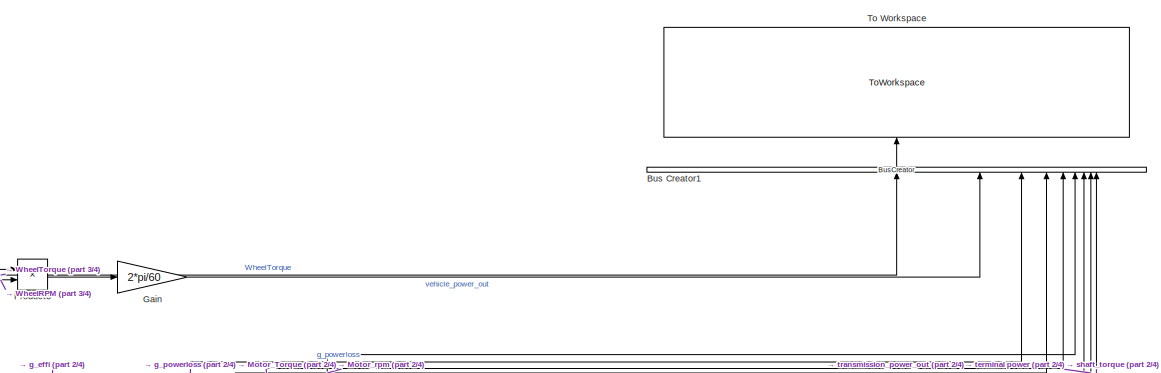
[diagram: root canvas - part 1/4, top center region]
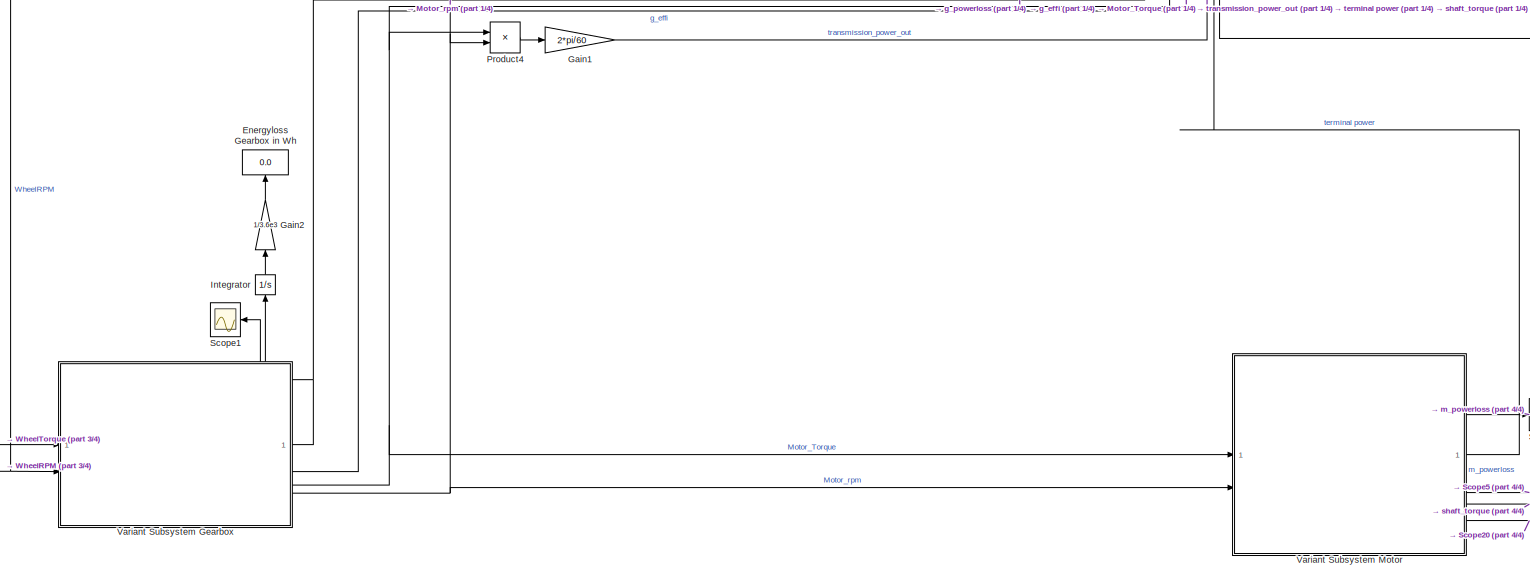
[diagram: root canvas - part 2/4, central region]
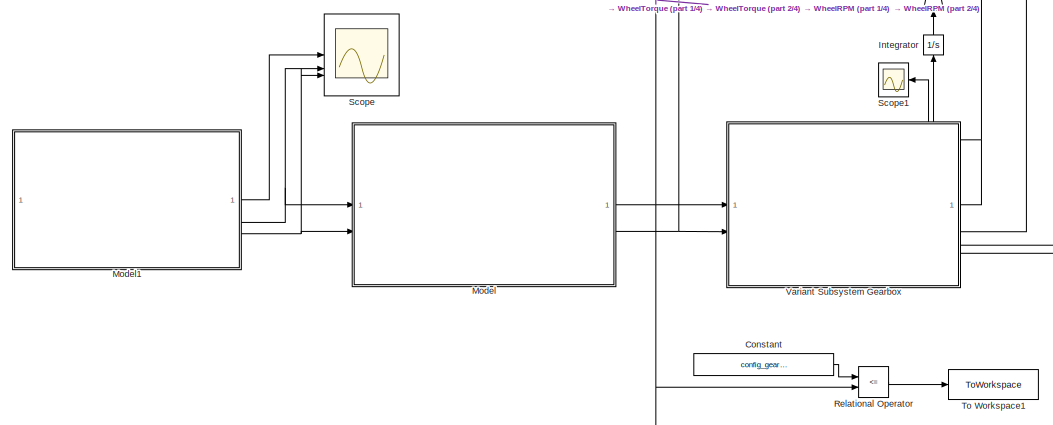
[diagram: root canvas - part 3/4, bottom left region]
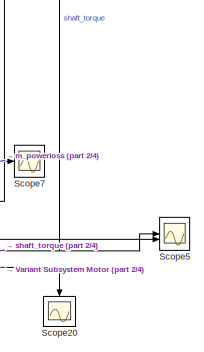
[diagram: root canvas - part 4/4, bottom right region]
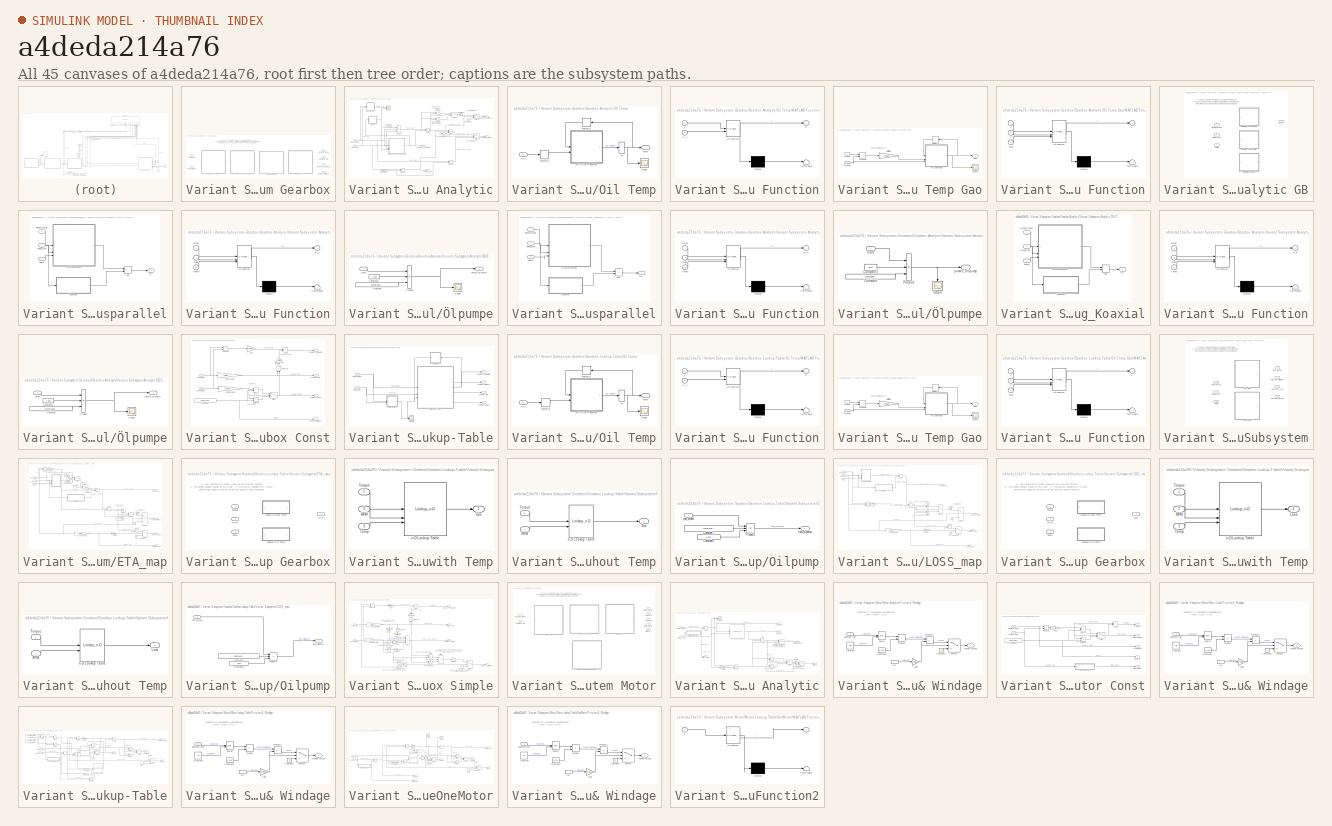
[diagram: thumbnail index - all 45 canvases of the model, root first then tree order]
MODEL slx_a4deda214a76
KIND model
CONFIG AbsTol = auto
CONFIG EnableMultiTasking = on
CONFIG FixedStep = 0.001
CONFIG MaxStep = 0.1
CONFIG MinStep = auto
CONFIG RelTol = 1e-3
CONFIG SampleTimeConstraint = Unconstrained
CONFIG SolverName = ode45
CONFIG StartTime = 0.0
CONFIG StopTime = 1220
BLOCK [BusCreator] Bus Creator1
  DisplayOption = bar
  InheritFromInputs = on
  Inputs = 9
  NameLocation = right
BLOCK [Constant] Constant
  Value = config_gearbox.M_max
BLOCK [Display] Energyloss Gearbox in Wh
  Decimation = 1
  NameLocation = top
BLOCK [Gain] Gain
  Gain = 2*pi/60
BLOCK [Gain] Gain1
  Gain = 2*pi/60
BLOCK [Gain] Gain2
  Gain = 1/3.6e3
  NameLocation = right
BLOCK [Integrator] Integrator
  NameLocation = right
BLOCK [ModelReference] Model
  ModelNameDialog = vehicle_model.slx
  ModelReferenceVersion = 2.0
BLOCK [ModelReference] Model1
  ModelNameDialog = drive_cycle.slx
  ModelReferenceVersion = 1.0
BLOCK [Product] Product3
BLOCK [Product] Product4
BLOCK [RelationalOperator] Relational Operator
  InputSameDT = off
  Operator = <=
  OutDataTypeStr = boolean
  RndMeth = Simplest
BLOCK [Scope] Scope
  Floating = off
  NumInputPorts = 3
  ScopeSpecificationString = Simulink.scopes.TimeScopeBlockCfg('CurrentConfiguration', extmgr.ConfigurationSet(extmgr.Configuration('Core','General UI',true),extmgr.Configuration('Core','Source UI',true),extmgr.Configuration('Sources','WiredSimulink',true,'DataLoggingVariableName','ScopeData1'),extmgr.Configuration('Visuals','Time Domain',true,'SerializedDisplays',{struct('MinYLimReal','-159.75','MaxYLimReal','1437.75','YLabe...<+2726ch>
BLOCK [Scope] Scope1
  Floating = off
  NameLocation = top
  NumInputPorts = 1
  ScopeSpecificationString = Simulink.scopes.TimeScopeBlockCfg('CurrentConfiguration', extmgr.ConfigurationSet(extmgr.Configuration('Core','General UI',true),extmgr.Configuration('Core','Source UI',true),extmgr.Configuration('Sources','WiredSimulink',true,'DataLoggingVariableName','ScopeData1'),extmgr.Configuration('Visuals','Time Domain',true,'SerializedDisplays',{struct('MinYLimReal','-358.75422','MaxYLimReal','3228.78797',...<+1539ch>
BLOCK [Scope] Scope20
  Floating = off
  NameLocation = left
  NumInputPorts = 1
  ScopeSpecificationString = Simulink.scopes.TimeScopeBlockCfg('CurrentConfiguration', extmgr.ConfigurationSet(extmgr.Configuration('Core','General UI',true),extmgr.Configuration('Core','Source UI',true),extmgr.Configuration('Sources','WiredSimulink',true,'DataLoggingVariableName','ScopeData1'),extmgr.Configuration('Visuals','Time Domain',true,'SerializedDisplays',{struct('MinYLimReal','-0.12143','MaxYLimReal','1.09284','YLab...<+1585ch>
BLOCK [Scope] Scope5
  Floating = off
  NumInputPorts = 2
  ScopeSpecificationString = Simulink.scopes.TimeScopeBlockCfg('CurrentConfiguration', extmgr.ConfigurationSet(extmgr.Configuration('Core','General UI',true),extmgr.Configuration('Core','Source UI',true),extmgr.Configuration('Sources','WiredSimulink',true,'DataLoggingVariableName','ScopeData2'),extmgr.Configuration('Visuals','Time Domain',true,'SerializedDisplays',{struct('MinYLimReal','-114.23633','MaxYLimReal','140.79313','...<+2163ch>
BLOCK [Scope] Scope7
  Floating = off
  NumInputPorts = 1
  ScopeSpecificationString = Simulink.scopes.TimeScopeBlockCfg('CurrentConfiguration', extmgr.ConfigurationSet(extmgr.Configuration('Core','General UI',true),extmgr.Configuration('Core','Source UI',true),extmgr.Configuration('Sources','WiredSimulink',true,'DataLoggingVariableName','ScopeData3'),extmgr.Configuration('Visuals','Time Domain',true,'SerializedDisplays',{struct('MinYLimReal','-442.03677','MaxYLimReal','3978.33091',...<+1586ch>
BLOCK [ToWorkspace] To Workspace
  FixptAsFi = on
  MaxDataPoints = inf
  NameLocation = right
  SampleTime = -1
  SaveFormat = Timeseries
  VariableName = sim_out
BLOCK [ToWorkspace] To Workspace1
  FixptAsFi = on
  MaxDataPoints = inf
  SampleTime = -1
  SaveFormat = Timeseries
  VariableName = gearbox_Torque
BLOCK [SubSystem] Variant Subsystem Gearbox
  Variant = on
BLOCK [SubSystem] Variant Subsystem Gearbox/Gearbox Analytic
  VariantControl = GB_Mode == "Analytic"
BLOCK [Sum] Variant Subsystem Gearbox/Gearbox Analytic/Add
  IconShape = rectangular
BLOCK [Constant] Variant Subsystem Gearbox/Gearbox Analytic/Constant
  Value = 2*pi/60
BLOCK [Constant] Variant Subsystem Gearbox/Gearbox Analytic/Constant1
  Value = 2*pi/60
BLOCK [Constant] Variant Subsystem Gearbox/Gearbox Analytic/Constant2
  Value = GB.iges
BLOCK [Constant] Variant Subsystem Gearbox/Gearbox Analytic/Constant3
  Value = 0
BLOCK [Product] Variant Subsystem Gearbox/Gearbox Analytic/Divide
  Inputs = *//
BLOCK [Product] Variant Subsystem Gearbox/Gearbox Analytic/Divide1
  Inputs = */
BLOCK [Product] Variant Subsystem Gearbox/Gearbox Analytic/Divide2
  Inputs = /*
BLOCK [SubSystem] Variant Subsystem Gearbox/Gearbox Analytic/Oil Temp
BLOCK [SubSystem] Variant Subsystem Gearbox/Gearbox Analytic/Oil Temp Gao
  Commented = on
BLOCK [SubSystem] Variant Subsystem Gearbox/Gearbox Analytic/Oil Temp Gao/MATLAB Function
  ErrorFcn = Stateflow.Translate.translate
  LibrarySourceBlock = simulink/User-Defined\nFunctions/MATLAB Function
  PermitHierarchicalResolution = ExplicitOnly
  SFBlockType = MATLAB Function
  TreatAsAtomicUnit = on
BLOCK [Demux] Variant Subsystem Gearbox/Gearbox Analytic/Oil Temp Gao/MATLAB Function/ Demux 
  Outputs = 1
BLOCK [S-Function] Variant Subsystem Gearbox/Gearbox Analytic/Oil Temp Gao/MATLAB Function/ SFunction 
  EnableBusSupport = on
  FunctionName = sf_sfun
  PortCounts = [3 2]
  SFcnIsStateOwnerBlock = off
  SFunctionDeploymentMode = off
  Tag = Stateflow S-Function 27
BLOCK [Terminator] Variant Subsystem Gearbox/Gearbox Analytic/Oil Temp Gao/MATLAB Function/ Terminator 
BLOCK [Inport] Variant Subsystem Gearbox/Gearbox Analytic/Oil Temp Gao/MATLAB Function/P
  Port = 2
BLOCK [Outport] Variant Subsystem Gearbox/Gearbox Analytic/Oil Temp Gao/MATLAB Function/T
BLOCK [Inport] Variant Subsystem Gearbox/Gearbox Analytic/Oil Temp Gao/MATLAB Function/rpm
  Port = 3
BLOCK [Inport] Variant Subsystem Gearbox/Gearbox Analytic/Oil Temp Gao/MATLAB Function/t
BLOCK [Memory] Variant Subsystem Gearbox/Gearbox Analytic/Oil Temp Gao/Memory1
  InitialCondition = config_vehicle.ambient_temp - 273
BLOCK [Gain] Variant Subsystem Gearbox/Gearbox Analytic/Oil Temp Gao/Multiply5
  Gain = 1/9550
BLOCK [Product] Variant Subsystem Gearbox/Gearbox Analytic/Oil Temp Gao/Product2
BLOCK [Scope] Variant Subsystem Gearbox/Gearbox Analytic/Oil Temp Gao/Scope
  Floating = off
  NumInputPorts = 1
  ScopeSpecificationString = Simulink.scopes.TimeScopeBlockCfg('CurrentConfiguration', extmgr.ConfigurationSet(extmgr.Configuration('Core','General UI',true),extmgr.Configuration('Core','Source UI',true),extmgr.Configuration('Sources','WiredSimulink',true,'DataLoggingVariableName','ScopeData1'),extmgr.Configuration('Visuals','Time Domain',true,'SerializedDisplays',{struct('MinYLimReal','23.29798','MaxYLimReal','41.81818','YLa...<+1579ch>
BLOCK [Inport] Variant Subsystem Gearbox/Gearbox Analytic/Oil Temp Gao/T_wheel
BLOCK [Inport] Variant Subsystem Gearbox/Gearbox Analytic/Oil Temp Gao/rpm_wheel
  Port = 2
BLOCK [Outport] Variant Subsystem Gearbox/Gearbox Analytic/Oil Temp Gao/temp
BLOCK [InitialCondition] Variant Subsystem Gearbox/Gearbox Analytic/Oil Temp/IC
  Value = 25
BLOCK [SubSystem] Variant Subsystem Gearbox/Gearbox Analytic/Oil Temp/MATLAB Function
  ErrorFcn = Stateflow.Translate.translate
  LibrarySourceBlock = simulink/User-Defined\nFunctions/MATLAB Function
  PermitHierarchicalResolution = ExplicitOnly
  SFBlockType = MATLAB Function
  TreatAsAtomicUnit = on
BLOCK [Demux] Variant Subsystem Gearbox/Gearbox Analytic/Oil Temp/MATLAB Function/ Demux 
  Outputs = 1
BLOCK [S-Function] Variant Subsystem Gearbox/Gearbox Analytic/Oil Temp/MATLAB Function/ SFunction 
  EnableBusSupport = on
  FunctionName = sf_sfun
  PortCounts = [2 2]
  SFcnIsStateOwnerBlock = off
  SFunctionDeploymentMode = off
  Tag = Stateflow S-Function 16
BLOCK [Terminator] Variant Subsystem Gearbox/Gearbox Analytic/Oil Temp/MATLAB Function/ Terminator 
BLOCK [Inport] Variant Subsystem Gearbox/Gearbox Analytic/Oil Temp/MATLAB Function/P_V
  Port = 2
BLOCK [Outport] Variant Subsystem Gearbox/Gearbox Analytic/Oil Temp/MATLAB Function/T
BLOCK [Inport] Variant Subsystem Gearbox/Gearbox Analytic/Oil Temp/MATLAB Function/t
BLOCK [Memory] Variant Subsystem Gearbox/Gearbox Analytic/Oil Temp/Memory1
  InitialCondition = config_vehicle.ambient_temp - 273
BLOCK [Memory] Variant Subsystem Gearbox/Gearbox Analytic/Oil Temp/Memory2
  InitialCondition = config_vehicle.ambient_temp - 273
  NameLocation = top
BLOCK [Inport] Variant Subsystem Gearbox/Gearbox Analytic/Oil Temp/P_V
BLOCK [Scope] Variant Subsystem Gearbox/Gearbox Analytic/Oil Temp/Scope
  Floating = off
  NumInputPorts = 1
  ScopeSpecificationString = Simulink.scopes.TimeScopeBlockCfg('CurrentConfiguration', extmgr.ConfigurationSet(extmgr.Configuration('Core','General UI',true),extmgr.Configuration('Core','Source UI',true),extmgr.Configuration('Sources','WiredSimulink',true,'DataLoggingVariableName','ScopeData1'),extmgr.Configuration('Visuals','Time Domain',true,'SerializedDisplays',{struct('MinYLimReal','22.80646','MaxYLimReal','44.74185','YLa...<+1567ch>
BLOCK [Outport] Variant Subsystem Gearbox/Gearbox Analytic/Oil Temp/temp
BLOCK [Product] Variant Subsystem Gearbox/Gearbox Analytic/Product
BLOCK [Product] Variant Subsystem Gearbox/Gearbox Analytic/Product1
  Inputs = 3
BLOCK [Product] Variant Subsystem Gearbox/Gearbox Analytic/Product2
  Inputs = */
BLOCK [Saturate] Variant Subsystem Gearbox/Gearbox Analytic/Saturation1
  LowerLimit = 0
  UpperLimit = inf
BLOCK [Scope] Variant Subsystem Gearbox/Gearbox Analytic/Scope
  Floating = off
  NumInputPorts = 2
  ScopeSpecificationString = Simulink.scopes.TimeScopeBlockCfg('CurrentConfiguration', extmgr.ConfigurationSet(extmgr.Configuration('Core','General UI',true),extmgr.Configuration('Core','Source UI',true),extmgr.Configuration('Sources','WiredSimulink',true,'DataLoggingVariableName','ScopeData12'),extmgr.Configuration('Visuals','Time Domain',true,'SerializedDisplays',{struct('MinYLimReal','20.95283','MaxYLimReal','61.42453','YL...<+1539ch>
BLOCK [Switch] Variant Subsystem Gearbox/Gearbox Analytic/Switch
  Criteria = u2 > Threshold
  InputSameDT = off
  SaturateOnIntegerOverflow = off
BLOCK [Switch] Variant Subsystem Gearbox/Gearbox Analytic/Switch1
  Criteria = u2 ~= 0
  InputSameDT = off
  SaturateOnIntegerOverflow = off
BLOCK [Switch] Variant Subsystem Gearbox/Gearbox Analytic/Switch2
  Criteria = u2 ~= 0
  InputSameDT = off
  SaturateOnIntegerOverflow = off
BLOCK [SubSystem] Variant Subsystem Gearbox/Gearbox Analytic/Variant Subsystem Analytic GB
  Variant = on
BLOCK [SubSystem] Variant Subsystem Gearbox/Gearbox Analytic/Variant Subsystem Analytic GB/Einstufig_Achsparallel
  VariantControl = GB_Stufen == 1
BLOCK [Sum] Variant Subsystem Gearbox/Gearbox Analytic/Variant Subsystem Analytic GB/Einstufig_Achsparallel/Add
  IconShape = rectangular
BLOCK [SubSystem] Variant Subsystem Gearbox/Gearbox Analytic/Variant Subsystem Analytic GB/Einstufig_Achsparallel/MATLAB Function
  ErrorFcn = Stateflow.Translate.translate
  LibrarySourceBlock = simulink/User-Defined\nFunctions/MATLAB Function
  PermitHierarchicalResolution = ExplicitOnly
  SFBlockType = MATLAB Function
  TreatAsAtomicUnit = on
BLOCK [Demux] Variant Subsystem Gearbox/Gearbox Analytic/Variant Subsystem Analytic GB/Einstufig_Achsparallel/MATLAB Function/ Demux 
  Outputs = 1
BLOCK [S-Function] Variant Subsystem Gearbox/Gearbox Analytic/Variant Subsystem Analytic GB/Einstufig_Achsparallel/MATLAB Function/ SFunction 
  EnableBusSupport = on
  FunctionName = sf_sfun
  Parameters = GB
  PortCounts = [3 2]
  SFcnIsStateOwnerBlock = off
  SFunctionDeploymentMode = off
  Tag = Stateflow S-Function 1
BLOCK [Terminator] Variant Subsystem Gearbox/Gearbox Analytic/Variant Subsystem Analytic GB/Einstufig_Achsparallel/MATLAB Function/ Terminator 
BLOCK [Inport] Variant Subsystem Gearbox/Gearbox Analytic/Variant Subsystem Analytic GB/Einstufig_Achsparallel/MATLAB Function/Mrad
BLOCK [Outport] Variant Subsystem Gearbox/Gearbox Analytic/Variant Subsystem Analytic GB/Einstufig_Achsparallel/MATLAB Function/P_V
BLOCK [Inport] Variant Subsystem Gearbox/Gearbox Analytic/Variant Subsystem Analytic GB/Einstufig_Achsparallel/MATLAB Function/Temp
  Port = 3
BLOCK [Inport] Variant Subsystem Gearbox/Gearbox Analytic/Variant Subsystem Analytic GB/Einstufig_Achsparallel/MATLAB Function/nrad
  Port = 2
BLOCK [Outport] Variant Subsystem Gearbox/Gearbox Analytic/Variant Subsystem Analytic GB/Einstufig_Achsparallel/P_V
BLOCK [Inport] Variant Subsystem Gearbox/Gearbox Analytic/Variant Subsystem Analytic GB/Einstufig_Achsparallel/Temp
  Port = 3
BLOCK [Inport] Variant Subsystem Gearbox/Gearbox Analytic/Variant Subsystem Analytic GB/Einstufig_Achsparallel/wheel_rpm
  Port = 2
BLOCK [Inport] Variant Subsystem Gearbox/Gearbox Analytic/Variant Subsystem Analytic GB/Einstufig_Achsparallel/wheel_torque
BLOCK [SubSystem] Variant Subsystem Gearbox/Gearbox Analytic/Variant Subsystem Analytic GB/Einstufig_Achsparallel/Ölpumpe
BLOCK [Constant] Variant Subsystem Gearbox/Gearbox Analytic/Variant Subsystem Analytic GB/Einstufig_Achsparallel/Ölpumpe/Constant
  Value = config_gearbox.power_oilpump
BLOCK [Constant] Variant Subsystem Gearbox/Gearbox Analytic/Variant Subsystem Analytic GB/Einstufig_Achsparallel/Ölpumpe/Constant1
  Value = 1.5e3
BLOCK [Product] Variant Subsystem Gearbox/Gearbox Analytic/Variant Subsystem Analytic GB/Einstufig_Achsparallel/Ölpumpe/Product
  Inputs = */*
BLOCK [Scope] Variant Subsystem Gearbox/Gearbox Analytic/Variant Subsystem Analytic GB/Einstufig_Achsparallel/Ölpumpe/Scope
  Floating = off
  NumInputPorts = 1
  ScopeSpecificationString = Simulink.scopes.TimeScopeBlockCfg('CurrentConfiguration', extmgr.ConfigurationSet(extmgr.Configuration('Core','General UI',true),extmgr.Configuration('Core','Source UI',true),extmgr.Configuration('Sources','WiredSimulink',true,'DataLoggingVariableName','ScopeData1'),extmgr.Configuration('Visuals','Time Domain',true,'SerializedDisplays',{struct('MinYLimReal','-8.56229','MaxYLimReal','77.06063','YLa...<+1428ch>  <repeated x3 — deduplicated; at blocks: Scope>
BLOCK [Inport] Variant Subsystem Gearbox/Gearbox Analytic/Variant Subsystem Analytic GB/Einstufig_Achsparallel/Ölpumpe/nrad
BLOCK [Outport] Variant Subsystem Gearbox/Gearbox Analytic/Variant Subsystem Analytic GB/Einstufig_Achsparallel/Ölpumpe/power_oilpump
BLOCK [Outport] Variant Subsystem Gearbox/Gearbox Analytic/Variant Subsystem Analytic GB/P_V
BLOCK [Inport] Variant Subsystem Gearbox/Gearbox Analytic/Variant Subsystem Analytic GB/Temp
  Port = 3
BLOCK [SubSystem] Variant Subsystem Gearbox/Gearbox Analytic/Variant Subsystem Analytic GB/Zweistufig_Achsparallel
  VariantControl = GB_Stufen == 2 && GB_Topology == "achsparallel"
BLOCK [Sum] Variant Subsystem Gearbox/Gearbox Analytic/Variant Subsystem Analytic GB/Zweistufig_Achsparallel/Add
  IconShape = rectangular
BLOCK [SubSystem] Variant Subsystem Gearbox/Gearbox Analytic/Variant Subsystem Analytic GB/Zweistufig_Achsparallel/MATLAB Function
  ErrorFcn = Stateflow.Translate.translate
  LibrarySourceBlock = simulink/User-Defined\nFunctions/MATLAB Function
  PermitHierarchicalResolution = ExplicitOnly
  SFBlockType = MATLAB Function
  TreatAsAtomicUnit = on
BLOCK [Demux] Variant Subsystem Gearbox/Gearbox Analytic/Variant Subsystem Analytic GB/Zweistufig_Achsparallel/MATLAB Function/ Demux 
  Outputs = 1
BLOCK [S-Function] Variant Subsystem Gearbox/Gearbox Analytic/Variant Subsystem Analytic GB/Zweistufig_Achsparallel/MATLAB Function/ SFunction 
  EnableBusSupport = on
  FunctionName = sf_sfun
  Parameters = GB
  PortCounts = [3 2]
  SFcnIsStateOwnerBlock = off
  SFunctionDeploymentMode = off
  Tag = Stateflow S-Function 28
BLOCK [Terminator] Variant Subsystem Gearbox/Gearbox Analytic/Variant Subsystem Analytic GB/Zweistufig_Achsparallel/MATLAB Function/ Terminator 
BLOCK [Inport] Variant Subsystem Gearbox/Gearbox Analytic/Variant Subsystem Analytic GB/Zweistufig_Achsparallel/MATLAB Function/Mrad
BLOCK [Outport] Variant Subsystem Gearbox/Gearbox Analytic/Variant Subsystem Analytic GB/Zweistufig_Achsparallel/MATLAB Function/P_V
BLOCK [Inport] Variant Subsystem Gearbox/Gearbox Analytic/Variant Subsystem Analytic GB/Zweistufig_Achsparallel/MATLAB Function/Temp
  Port = 3
BLOCK [Inport] Variant Subsystem Gearbox/Gearbox Analytic/Variant Subsystem Analytic GB/Zweistufig_Achsparallel/MATLAB Function/nrad
  Port = 2
BLOCK [Outport] Variant Subsystem Gearbox/Gearbox Analytic/Variant Subsystem Analytic GB/Zweistufig_Achsparallel/P_V
BLOCK [Inport] Variant Subsystem Gearbox/Gearbox Analytic/Variant Subsystem Analytic GB/Zweistufig_Achsparallel/Temp
  Port = 3
BLOCK [Inport] Variant Subsystem Gearbox/Gearbox Analytic/Variant Subsystem Analytic GB/Zweistufig_Achsparallel/wheel_rpm
  Port = 2
BLOCK [Inport] Variant Subsystem Gearbox/Gearbox Analytic/Variant Subsystem Analytic GB/Zweistufig_Achsparallel/wheel_torque
BLOCK [SubSystem] Variant Subsystem Gearbox/Gearbox Analytic/Variant Subsystem Analytic GB/Zweistufig_Achsparallel/Ölpumpe
BLOCK [Constant] Variant Subsystem Gearbox/Gearbox Analytic/Variant Subsystem Analytic GB/Zweistufig_Achsparallel/Ölpumpe/Constant
  Value = config_gearbox.power_oilpump
BLOCK [Constant] Variant Subsystem Gearbox/Gearbox Analytic/Variant Subsystem Analytic GB/Zweistufig_Achsparallel/Ölpumpe/Constant1
  Value = 15e3
BLOCK [Product] Variant Subsystem Gearbox/Gearbox Analytic/Variant Subsystem Analytic GB/Zweistufig_Achsparallel/Ölpumpe/Product
  Inputs = */*
BLOCK [Scope] Variant Subsystem Gearbox/Gearbox Analytic/Variant Subsystem Analytic GB/Zweistufig_Achsparallel/Ölpumpe/Scope
  Floating = off
  NameLocation = left
  NumInputPorts = 1
BLOCK [Inport] Variant Subsystem Gearbox/Gearbox Analytic/Variant Subsystem Analytic GB/Zweistufig_Achsparallel/Ölpumpe/nrad
BLOCK [Outport] Variant Subsystem Gearbox/Gearbox Analytic/Variant Subsystem Analytic GB/Zweistufig_Achsparallel/Ölpumpe/power_oilpump
BLOCK [SubSystem] Variant Subsystem Gearbox/Gearbox Analytic/Variant Subsystem Analytic GB/Zweistufig_Koaxial
  VariantControl = GB_Stufen == 2 && GB_Topology == "koaxial"
BLOCK [Sum] Variant Subsystem Gearbox/Gearbox Analytic/Variant Subsystem Analytic GB/Zweistufig_Koaxial/Add
  IconShape = rectangular
BLOCK [SubSystem] Variant Subsystem Gearbox/Gearbox Analytic/Variant Subsystem Analytic GB/Zweistufig_Koaxial/MATLAB Function
  ErrorFcn = Stateflow.Translate.translate
  LibrarySourceBlock = simulink/User-Defined\nFunctions/MATLAB Function
  PermitHierarchicalResolution = ExplicitOnly
  SFBlockType = MATLAB Function
  TreatAsAtomicUnit = on
BLOCK [Demux] Variant Subsystem Gearbox/Gearbox Analytic/Variant Subsystem Analytic GB/Zweistufig_Koaxial/MATLAB Function/ Demux 
  Outputs = 1
BLOCK [S-Function] Variant Subsystem Gearbox/Gearbox Analytic/Variant Subsystem Analytic GB/Zweistufig_Koaxial/MATLAB Function/ SFunction 
  EnableBusSupport = on
  FunctionName = sf_sfun
  Parameters = GB
  PortCounts = [3 2]
  SFcnIsStateOwnerBlock = off
  SFunctionDeploymentMode = off
  Tag = Stateflow S-Function 23
BLOCK [Terminator] Variant Subsystem Gearbox/Gearbox Analytic/Variant Subsystem Analytic GB/Zweistufig_Koaxial/MATLAB Function/ Terminator 
BLOCK [Inport] Variant Subsystem Gearbox/Gearbox Analytic/Variant Subsystem Analytic GB/Zweistufig_Koaxial/MATLAB Function/Mrad
BLOCK [Outport] Variant Subsystem Gearbox/Gearbox Analytic/Variant Subsystem Analytic GB/Zweistufig_Koaxial/MATLAB Function/P_V
BLOCK [Inport] Variant Subsystem Gearbox/Gearbox Analytic/Variant Subsystem Analytic GB/Zweistufig_Koaxial/MATLAB Function/Temp
  Port = 3
BLOCK [Inport] Variant Subsystem Gearbox/Gearbox Analytic/Variant Subsystem Analytic GB/Zweistufig_Koaxial/MATLAB Function/nrad
  Port = 2
BLOCK [Outport] Variant Subsystem Gearbox/Gearbox Analytic/Variant Subsystem Analytic GB/Zweistufig_Koaxial/P_V
BLOCK [Inport] Variant Subsystem Gearbox/Gearbox Analytic/Variant Subsystem Analytic GB/Zweistufig_Koaxial/Temp
  Port = 3
BLOCK [Inport] Variant Subsystem Gearbox/Gearbox Analytic/Variant Subsystem Analytic GB/Zweistufig_Koaxial/wheel_rpm
  Port = 2
BLOCK [Inport] Variant Subsystem Gearbox/Gearbox Analytic/Variant Subsystem Analytic GB/Zweistufig_Koaxial/wheel_torque
BLOCK [SubSystem] Variant Subsystem Gearbox/Gearbox Analytic/Variant Subsystem Analytic GB/Zweistufig_Koaxial/Ölpumpe
BLOCK [Constant] Variant Subsystem Gearbox/Gearbox Analytic/Variant Subsystem Analytic GB/Zweistufig_Koaxial/Ölpumpe/Constant
  Value = config_gearbox.power_oilpump
BLOCK [Constant] Variant Subsystem Gearbox/Gearbox Analytic/Variant Subsystem Analytic GB/Zweistufig_Koaxial/Ölpumpe/Constant1
  Value = 1.5e3
BLOCK [Product] Variant Subsystem Gearbox/Gearbox Analytic/Variant Subsystem Analytic GB/Zweistufig_Koaxial/Ölpumpe/Product
  Inputs = */*
BLOCK [Scope] Variant Subsystem Gearbox/Gearbox Analytic/Variant Subsystem Analytic GB/Zweistufig_Koaxial/Ölpumpe/Scope
  Floating = off
  NumInputPorts = 1
BLOCK [Inport] Variant Subsystem Gearbox/Gearbox Analytic/Variant Subsystem Analytic GB/Zweistufig_Koaxial/Ölpumpe/nrad
BLOCK [Outport] Variant Subsystem Gearbox/Gearbox Analytic/Variant Subsystem Analytic GB/Zweistufig_Koaxial/Ölpumpe/power_oilpump
BLOCK [Inport] Variant Subsystem Gearbox/Gearbox Analytic/Variant Subsystem Analytic GB/wheel_rpm
  Port = 2
BLOCK [Inport] Variant Subsystem Gearbox/Gearbox Analytic/Variant Subsystem Analytic GB/wheel_torque
BLOCK [Outport] Variant Subsystem Gearbox/Gearbox Analytic/gearbox_efficiency
  Port = 4
BLOCK [Outport] Variant Subsystem Gearbox/Gearbox Analytic/gearbox_powerloss
  Port = 3
BLOCK [Outport] Variant Subsystem Gearbox/Gearbox Analytic/gearbox_rpm
  Port = 2
BLOCK [Outport] Variant Subsystem Gearbox/Gearbox Analytic/gearbox_torque
BLOCK [Inport] Variant Subsystem Gearbox/Gearbox Analytic/wheel_rpm
BLOCK [Inport] Variant Subsystem Gearbox/Gearbox Analytic/wheel_torque
  Port = 2
BLOCK [SubSystem] Variant Subsystem Gearbox/Gearbox Const
  VariantControl = GB_Mode == "Const"
BLOCK [Sum] Variant Subsystem Gearbox/Gearbox Const/Add
  IconShape = rectangular
  Inputs = -+
BLOCK [Constant] Variant Subsystem Gearbox/Gearbox Const/Constant
  Value = config_gearbox.efficiency
BLOCK [Gain] Variant Subsystem Gearbox/Gearbox Const/Gain
  Gain = 2*pi/60
BLOCK [Gain] Variant Subsystem Gearbox/Gearbox Const/Gain1
  Gain = 2*pi/60
  NameLocation = right
BLOCK [Gain] Variant Subsystem Gearbox/Gearbox Const/Gearbox Ratio
  Gain = config_gearbox.ratio
BLOCK [Gain] Variant Subsystem Gearbox/Gearbox Const/Gearbox Ratio1
  Gain = 1/config_gearbox.ratio
BLOCK [Product] Variant Subsystem Gearbox/Gearbox Const/Product
  Inputs = */
BLOCK [Product] Variant Subsystem Gearbox/Gearbox Const/Product1
  Inputs = **
BLOCK [Product] Variant Subsystem Gearbox/Gearbox Const/Product2
BLOCK [Product] Variant Subsystem Gearbox/Gearbox Const/Product3
  NameLocation = right
BLOCK [Switch] Variant Subsystem Gearbox/Gearbox Const/Switch
  InputSameDT = off
  SaturateOnIntegerOverflow = off
BLOCK [Outport] Variant Subsystem Gearbox/Gearbox Const/gearbox_efficiency
  Port = 4
BLOCK [Outport] Variant Subsystem Gearbox/Gearbox Const/gearbox_powerloss
  Port = 3
BLOCK [Outport] Variant Subsystem Gearbox/Gearbox Const/gearbox_rpm
  Port = 2
BLOCK [Outport] Variant Subsystem Gearbox/Gearbox Const/gearbox_torque
BLOCK [Inport] Variant Subsystem Gearbox/Gearbox Const/wheel_rpm
BLOCK [Inport] Variant Subsystem Gearbox/Gearbox Const/wheel_torque
  Port = 2
BLOCK [SubSystem] Variant Subsystem Gearbox/Gearbox Lookup-Table
  VariantControl = GB_Mode == "Lookup"
BLOCK [SubSystem] Variant Subsystem Gearbox/Gearbox Lookup-Table/Oil Temp
  NameLocation = top
BLOCK [SubSystem] Variant Subsystem Gearbox/Gearbox Lookup-Table/Oil Temp Gao
  Commented = on
BLOCK [SubSystem] Variant Subsystem Gearbox/Gearbox Lookup-Table/Oil Temp Gao/MATLAB Function
  ErrorFcn = Stateflow.Translate.translate
  LibrarySourceBlock = simulink/User-Defined\nFunctions/MATLAB Function
  PermitHierarchicalResolution = ExplicitOnly
  SFBlockType = MATLAB Function
  TreatAsAtomicUnit = on
BLOCK [Demux] Variant Subsystem Gearbox/Gearbox Lookup-Table/Oil Temp Gao/MATLAB Function/ Demux 
  Outputs = 1
BLOCK [S-Function] Variant Subsystem Gearbox/Gearbox Lookup-Table/Oil Temp Gao/MATLAB Function/ SFunction 
  EnableBusSupport = on
  FunctionName = sf_sfun
  PortCounts = [3 2]
  SFcnIsStateOwnerBlock = off
  SFunctionDeploymentMode = off
  Tag = Stateflow S-Function 22
BLOCK [Terminator] Variant Subsystem Gearbox/Gearbox Lookup-Table/Oil Temp Gao/MATLAB Function/ Terminator 
BLOCK [Inport] Variant Subsystem Gearbox/Gearbox Lookup-Table/Oil Temp Gao/MATLAB Function/P
  Port = 2
BLOCK [Outport] Variant Subsystem Gearbox/Gearbox Lookup-Table/Oil Temp Gao/MATLAB Function/T
BLOCK [Inport] Variant Subsystem Gearbox/Gearbox Lookup-Table/Oil Temp Gao/MATLAB Function/rpm
  Port = 3
BLOCK [Inport] Variant Subsystem Gearbox/Gearbox Lookup-Table/Oil Temp Gao/MATLAB Function/t
BLOCK [Memory] Variant Subsystem Gearbox/Gearbox Lookup-Table/Oil Temp Gao/Memory1
  InitialCondition = config_vehicle.ambient_temp - 273
BLOCK [Gain] Variant Subsystem Gearbox/Gearbox Lookup-Table/Oil Temp Gao/Multiply5
  Gain = 1/9550
BLOCK [Product] Variant Subsystem Gearbox/Gearbox Lookup-Table/Oil Temp Gao/Product2
BLOCK [Scope] Variant Subsystem Gearbox/Gearbox Lookup-Table/Oil Temp Gao/Scope
  Floating = off
  NumInputPorts = 1
  ScopeSpecificationString = Simulink.scopes.TimeScopeBlockCfg('CurrentConfiguration', extmgr.ConfigurationSet(extmgr.Configuration('Core','General UI',true),extmgr.Configuration('Core','Source UI',true),extmgr.Configuration('Sources','WiredSimulink',true,'DataLoggingVariableName','ScopeData1'),extmgr.Configuration('Visuals','Time Domain',true,'SerializedDisplays',{struct('MinYLimReal','21.12158','MaxYLimReal','61.40578','YLa...<+1578ch>
BLOCK [Inport] Variant Subsystem Gearbox/Gearbox Lookup-Table/Oil Temp Gao/T_wheel
BLOCK [Inport] Variant Subsystem Gearbox/Gearbox Lookup-Table/Oil Temp Gao/rpm_wheel
  Port = 2
BLOCK [Outport] Variant Subsystem Gearbox/Gearbox Lookup-Table/Oil Temp Gao/temp
BLOCK [InitialCondition] Variant Subsystem Gearbox/Gearbox Lookup-Table/Oil Temp/IC
  Value = 25
BLOCK [SubSystem] Variant Subsystem Gearbox/Gearbox Lookup-Table/Oil Temp/MATLAB Function
  ErrorFcn = Stateflow.Translate.translate
  LibrarySourceBlock = simulink/User-Defined\nFunctions/MATLAB Function
  PermitHierarchicalResolution = ExplicitOnly
  SFBlockType = MATLAB Function
  TreatAsAtomicUnit = on
BLOCK [Demux] Variant Subsystem Gearbox/Gearbox Lookup-Table/Oil Temp/MATLAB Function/ Demux 
  Outputs = 1
BLOCK [S-Function] Variant Subsystem Gearbox/Gearbox Lookup-Table/Oil Temp/MATLAB Function/ SFunction 
  EnableBusSupport = on
  FunctionName = sf_sfun
  PortCounts = [2 2]
  SFcnIsStateOwnerBlock = off
  SFunctionDeploymentMode = off
  Tag = Stateflow S-Function 11
BLOCK [Terminator] Variant Subsystem Gearbox/Gearbox Lookup-Table/Oil Temp/MATLAB Function/ Terminator 
BLOCK [Inport] Variant Subsystem Gearbox/Gearbox Lookup-Table/Oil Temp/MATLAB Function/P_V
  Port = 2
BLOCK [Outport] Variant Subsystem Gearbox/Gearbox Lookup-Table/Oil Temp/MATLAB Function/T
BLOCK [Inport] Variant Subsystem Gearbox/Gearbox Lookup-Table/Oil Temp/MATLAB Function/t
BLOCK [Memory] Variant Subsystem Gearbox/Gearbox Lookup-Table/Oil Temp/Memory1
  InitialCondition = config_vehicle.ambient_temp - 273
BLOCK [Memory] Variant Subsystem Gearbox/Gearbox Lookup-Table/Oil Temp/Memory2
  InitialCondition = config_vehicle.ambient_temp - 273
  NameLocation = top
BLOCK [Inport] Variant Subsystem Gearbox/Gearbox Lookup-Table/Oil Temp/P_V
BLOCK [Scope] Variant Subsystem Gearbox/Gearbox Lookup-Table/Oil Temp/Scope
  Floating = off
  NumInputPorts = 1
  ScopeSpecificationString = Simulink.scopes.TimeScopeBlockCfg('CurrentConfiguration', extmgr.ConfigurationSet(extmgr.Configuration('Core','General UI',true),extmgr.Configuration('Core','Source UI',true),extmgr.Configuration('Sources','WiredSimulink',true,'DataLoggingVariableName','ScopeData1'),extmgr.Configuration('Visuals','Time Domain',true,'SerializedDisplays',{struct('MinYLimReal','22.80646','MaxYLimReal','44.74185','YLa...<+1567ch>
BLOCK [Outport] Variant Subsystem Gearbox/Gearbox Lookup-Table/Oil Temp/temp
BLOCK [Scope] Variant Subsystem Gearbox/Gearbox Lookup-Table/Scope
  Commented = on
  Floating = off
  NumInputPorts = 2
  ScopeSpecificationString = Simulink.scopes.TimeScopeBlockCfg('CurrentConfiguration', extmgr.ConfigurationSet(extmgr.Configuration('Core','General UI',true),extmgr.Configuration('Core','Source UI',true),extmgr.Configuration('Sources','WiredSimulink',true,'DataLoggingVariableName','ScopeData1'),extmgr.Configuration('Visuals','Time Domain',true,'SerializedDisplays',{struct('MinYLimReal','21.12158','MaxYLimReal','61.40578','YLa...<+1468ch>
BLOCK [SubSystem] Variant Subsystem Gearbox/Gearbox Lookup-Table/Variant Subsystem
  Variant = on
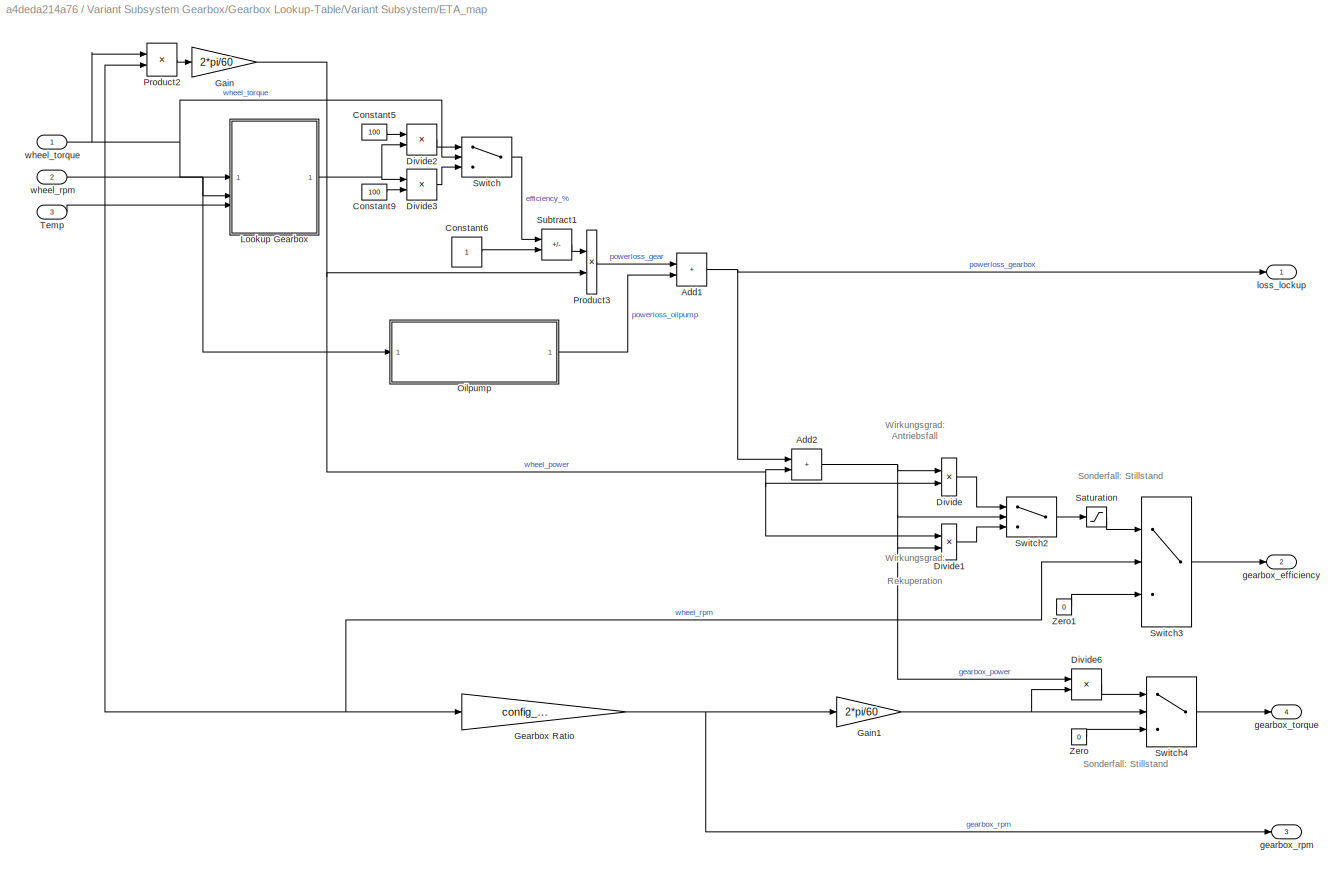
BLOCK [SubSystem] Variant Subsystem Gearbox/Gearbox Lookup-Table/Variant Subsystem/ETA_map
  VariantControl = gearbox_map.map_type == "Eta"
BLOCK [Sum] Variant Subsystem Gearbox/Gearbox Lookup-Table/Variant Subsystem/ETA_map/Add1
  IconShape = rectangular
BLOCK [Sum] Variant Subsystem Gearbox/Gearbox Lookup-Table/Variant Subsystem/ETA_map/Add2
  IconShape = rectangular
BLOCK [Constant] Variant Subsystem Gearbox/Gearbox Lookup-Table/Variant Subsystem/ETA_map/Constant5
  Value = 100
BLOCK [Constant] Variant Subsystem Gearbox/Gearbox Lookup-Table/Variant Subsystem/ETA_map/Constant6
BLOCK [Constant] Variant Subsystem Gearbox/Gearbox Lookup-Table/Variant Subsystem/ETA_map/Constant9
  Value = 100
BLOCK [Product] Variant Subsystem Gearbox/Gearbox Lookup-Table/Variant Subsystem/ETA_map/Divide
  Inputs = /*
BLOCK [Product] Variant Subsystem Gearbox/Gearbox Lookup-Table/Variant Subsystem/ETA_map/Divide1
  Inputs = /*
BLOCK [Product] Variant Subsystem Gearbox/Gearbox Lookup-Table/Variant Subsystem/ETA_map/Divide2
  Inputs = */
BLOCK [Product] Variant Subsystem Gearbox/Gearbox Lookup-Table/Variant Subsystem/ETA_map/Divide3
  Inputs = */
BLOCK [Product] Variant Subsystem Gearbox/Gearbox Lookup-Table/Variant Subsystem/ETA_map/Divide6
  Inputs = */
BLOCK [Gain] Variant Subsystem Gearbox/Gearbox Lookup-Table/Variant Subsystem/ETA_map/Gain
  Gain = 2*pi/60
BLOCK [Gain] Variant Subsystem Gearbox/Gearbox Lookup-Table/Variant Subsystem/ETA_map/Gain1
  Gain = 2*pi/60
BLOCK [Gain] Variant Subsystem Gearbox/Gearbox Lookup-Table/Variant Subsystem/ETA_map/Gearbox Ratio
  Gain = config_gearbox.iges
BLOCK [SubSystem] Variant Subsystem Gearbox/Gearbox Lookup-Table/Variant Subsystem/ETA_map/Lookup Gearbox
  Variant = on
BLOCK [Outport] Variant Subsystem Gearbox/Gearbox Lookup-Table/Variant Subsystem/ETA_map/Lookup Gearbox/Eta
BLOCK [SubSystem] Variant Subsystem Gearbox/Gearbox Lookup-Table/Variant Subsystem/ETA_map/Lookup Gearbox/Lookup with Temp
  VariantControl = gearbox_map.dim_lookup == 3
BLOCK [Outport] Variant Subsystem Gearbox/Gearbox Lookup-Table/Variant Subsystem/ETA_map/Lookup Gearbox/Lookup with Temp/Eta
BLOCK [Inport] Variant Subsystem Gearbox/Gearbox Lookup-Table/Variant Subsystem/ETA_map/Lookup Gearbox/Lookup with Temp/RPM
  Port = 2
BLOCK [Inport] Variant Subsystem Gearbox/Gearbox Lookup-Table/Variant Subsystem/ETA_map/Lookup Gearbox/Lookup with Temp/Temp
  Port = 3
BLOCK [Inport] Variant Subsystem Gearbox/Gearbox Lookup-Table/Variant Subsystem/ETA_map/Lookup Gearbox/Lookup with Temp/Torque
BLOCK [Lookup_n-D] Variant Subsystem Gearbox/Gearbox Lookup-Table/Variant Subsystem/ETA_map/Lookup Gearbox/Lookup with Temp/n-D Lookup Table
  BreakpointsForDimension1 = gearbox_map.torque
  BreakpointsForDimension2 = gearbox_map.rpm
  BreakpointsForDimension3 = gearbox_map.temperature
  InputPortMap = u0,u1,u2
  InternalRulePriority = Speed
  NumberOfTableDimensions = 3
  RndMeth = Simplest
  Table = gearbox_map.eta
  UseLastTableValue = on
BLOCK [SubSystem] Variant Subsystem Gearbox/Gearbox Lookup-Table/Variant Subsystem/ETA_map/Lookup Gearbox/Lookup without Temp
  VariantControl = gearbox_map.dim_lookup == 2
BLOCK [Outport] Variant Subsystem Gearbox/Gearbox Lookup-Table/Variant Subsystem/ETA_map/Lookup Gearbox/Lookup without Temp/Eta
BLOCK [Inport] Variant Subsystem Gearbox/Gearbox Lookup-Table/Variant Subsystem/ETA_map/Lookup Gearbox/Lookup without Temp/RPM
  Port = 2
BLOCK [Inport] Variant Subsystem Gearbox/Gearbox Lookup-Table/Variant Subsystem/ETA_map/Lookup Gearbox/Lookup without Temp/Torque
BLOCK [Lookup_n-D] Variant Subsystem Gearbox/Gearbox Lookup-Table/Variant Subsystem/ETA_map/Lookup Gearbox/Lookup without Temp/n-D Lookup Table
  BreakpointsForDimension1 = gearbox_map.torque
  BreakpointsForDimension2 = gearbox_map.rpm
  BreakpointsForDimension3 = gearbox_map.temperature
  InputPortMap = u0,u1
  InternalRulePriority = Speed
  RndMeth = Simplest
  Table = gearbox_map.eta
  UseLastTableValue = on
BLOCK [Inport] Variant Subsystem Gearbox/Gearbox Lookup-Table/Variant Subsystem/ETA_map/Lookup Gearbox/RPM
  Port = 2
BLOCK [Inport] Variant Subsystem Gearbox/Gearbox Lookup-Table/Variant Subsystem/ETA_map/Lookup Gearbox/Temp
  Port = 3
BLOCK [Inport] Variant Subsystem Gearbox/Gearbox Lookup-Table/Variant Subsystem/ETA_map/Lookup Gearbox/Torque
BLOCK [SubSystem] Variant Subsystem Gearbox/Gearbox Lookup-Table/Variant Subsystem/ETA_map/Oilpump
BLOCK [Constant] Variant Subsystem Gearbox/Gearbox Lookup-Table/Variant Subsystem/ETA_map/Oilpump/Constant7
  Value = config_gearbox.power_oilpump
BLOCK [Constant] Variant Subsystem Gearbox/Gearbox Lookup-Table/Variant Subsystem/ETA_map/Oilpump/Constant8
  Value = 1.5e3
BLOCK [Product] Variant Subsystem Gearbox/Gearbox Lookup-Table/Variant Subsystem/ETA_map/Oilpump/Product4
  Inputs = **/
BLOCK [Outport] Variant Subsystem Gearbox/Gearbox Lookup-Table/Variant Subsystem/ETA_map/Oilpump/loss_oilpump
BLOCK [Inport] Variant Subsystem Gearbox/Gearbox Lookup-Table/Variant Subsystem/ETA_map/Oilpump/rpm_wheel
BLOCK [Product] Variant Subsystem Gearbox/Gearbox Lookup-Table/Variant Subsystem/ETA_map/Product2
  Inputs = **
BLOCK [Product] Variant Subsystem Gearbox/Gearbox Lookup-Table/Variant Subsystem/ETA_map/Product3
  Inputs = **
BLOCK [Saturate] Variant Subsystem Gearbox/Gearbox Lookup-Table/Variant Subsystem/ETA_map/Saturation
  LowerLimit = 0
  UpperLimit = inf
BLOCK [Sum] Variant Subsystem Gearbox/Gearbox Lookup-Table/Variant Subsystem/ETA_map/Subtract1
  IconShape = rectangular
  Inputs = +-
BLOCK [Switch] Variant Subsystem Gearbox/Gearbox Lookup-Table/Variant Subsystem/ETA_map/Switch
  InputSameDT = off
  SaturateOnIntegerOverflow = off
BLOCK [Switch] Variant Subsystem Gearbox/Gearbox Lookup-Table/Variant Subsystem/ETA_map/Switch2
  Criteria = u2 > Threshold
  InputSameDT = off
  SaturateOnIntegerOverflow = off
BLOCK [Switch] Variant Subsystem Gearbox/Gearbox Lookup-Table/Variant Subsystem/ETA_map/Switch3
  Criteria = u2 ~= 0
  InputSameDT = off
  NameLocation = top
  SaturateOnIntegerOverflow = off
BLOCK [Switch] Variant Subsystem Gearbox/Gearbox Lookup-Table/Variant Subsystem/ETA_map/Switch4
  Criteria = u2 ~= 0
  InputSameDT = off
  NameLocation = top
  SaturateOnIntegerOverflow = off
BLOCK [Inport] Variant Subsystem Gearbox/Gearbox Lookup-Table/Variant Subsystem/ETA_map/Temp
  Port = 3
BLOCK [Constant] Variant Subsystem Gearbox/Gearbox Lookup-Table/Variant Subsystem/ETA_map/Zero
  OutDataTypeStr = Inherit: Inherit via back propagation
  Value = 0
BLOCK [Constant] Variant Subsystem Gearbox/Gearbox Lookup-Table/Variant Subsystem/ETA_map/Zero1
  OutDataTypeStr = Inherit: Inherit via back propagation
  Value = 0
BLOCK [Outport] Variant Subsystem Gearbox/Gearbox Lookup-Table/Variant Subsystem/ETA_map/gearbox_efficiency
  Port = 2
BLOCK [Outport] Variant Subsystem Gearbox/Gearbox Lookup-Table/Variant Subsystem/ETA_map/gearbox_rpm
  Port = 3
BLOCK [Outport] Variant Subsystem Gearbox/Gearbox Lookup-Table/Variant Subsystem/ETA_map/gearbox_torque
  Port = 4
BLOCK [Outport] Variant Subsystem Gearbox/Gearbox Lookup-Table/Variant Subsystem/ETA_map/loss_lockup
BLOCK [Inport] Variant Subsystem Gearbox/Gearbox Lookup-Table/Variant Subsystem/ETA_map/wheel_rpm
  Port = 2
BLOCK [Inport] Variant Subsystem Gearbox/Gearbox Lookup-Table/Variant Subsystem/ETA_map/wheel_torque
BLOCK [SubSystem] Variant Subsystem Gearbox/Gearbox Lookup-Table/Variant Subsystem/LOSS_map
  VariantControl = gearbox_map.map_type == "Loss"
BLOCK [Sum] Variant Subsystem Gearbox/Gearbox Lookup-Table/Variant Subsystem/LOSS_map/Add1
  IconShape = rectangular
BLOCK [Sum] Variant Subsystem Gearbox/Gearbox Lookup-Table/Variant Subsystem/LOSS_map/Add2
  IconShape = rectangular
BLOCK [Product] Variant Subsystem Gearbox/Gearbox Lookup-Table/Variant Subsystem/LOSS_map/Divide
  Inputs = /*
BLOCK [Product] Variant Subsystem Gearbox/Gearbox Lookup-Table/Variant Subsystem/LOSS_map/Divide1
  Inputs = /*
BLOCK [Product] Variant Subsystem Gearbox/Gearbox Lookup-Table/Variant Subsystem/LOSS_map/Divide6
  Inputs = */
BLOCK [Gain] Variant Subsystem Gearbox/Gearbox Lookup-Table/Variant Subsystem/LOSS_map/Gain
  Gain = 2*pi/60
BLOCK [Gain] Variant Subsystem Gearbox/Gearbox Lookup-Table/Variant Subsystem/LOSS_map/Gain1
  Gain = 2*pi/60
BLOCK [Gain] Variant Subsystem Gearbox/Gearbox Lookup-Table/Variant Subsystem/LOSS_map/Gearbox Ratio
  Gain = config_gearbox.iges
BLOCK [SubSystem] Variant Subsystem Gearbox/Gearbox Lookup-Table/Variant Subsystem/LOSS_map/Lookup Gearbox
  Variant = on
BLOCK [SubSystem] Variant Subsystem Gearbox/Gearbox Lookup-Table/Variant Subsystem/LOSS_map/Lookup Gearbox/Lookup with Temp
  VariantControl = gearbox_map.dim_lookup == 3
BLOCK [Outport] Variant Subsystem Gearbox/Gearbox Lookup-Table/Variant Subsystem/LOSS_map/Lookup Gearbox/Lookup with Temp/Loss
BLOCK [Inport] Variant Subsystem Gearbox/Gearbox Lookup-Table/Variant Subsystem/LOSS_map/Lookup Gearbox/Lookup with Temp/RPM
  Port = 2
BLOCK [Inport] Variant Subsystem Gearbox/Gearbox Lookup-Table/Variant Subsystem/LOSS_map/Lookup Gearbox/Lookup with Temp/Temp
  Port = 3
BLOCK [Inport] Variant Subsystem Gearbox/Gearbox Lookup-Table/Variant Subsystem/LOSS_map/Lookup Gearbox/Lookup with Temp/Torque
BLOCK [Lookup_n-D] Variant Subsystem Gearbox/Gearbox Lookup-Table/Variant Subsystem/LOSS_map/Lookup Gearbox/Lookup with Temp/n-D Lookup Table
  BreakpointsForDimension1 = gearbox_map.torque
  BreakpointsForDimension2 = gearbox_map.rpm
  BreakpointsForDimension3 = gearbox_map.temperature
  InputPortMap = u0,u1,u2
  InternalRulePriority = Speed
  NumberOfTableDimensions = 3
  RndMeth = Simplest
  Table = gearbox_map.loss
  UseLastTableValue = on
BLOCK [SubSystem] Variant Subsystem Gearbox/Gearbox Lookup-Table/Variant Subsystem/LOSS_map/Lookup Gearbox/Lookup without Temp
  VariantControl = gearbox_map.dim_lookup == 2
BLOCK [Outport] Variant Subsystem Gearbox/Gearbox Lookup-Table/Variant Subsystem/LOSS_map/Lookup Gearbox/Lookup without Temp/Loss
BLOCK [Inport] Variant Subsystem Gearbox/Gearbox Lookup-Table/Variant Subsystem/LOSS_map/Lookup Gearbox/Lookup without Temp/RPM
  Port = 2
BLOCK [Inport] Variant Subsystem Gearbox/Gearbox Lookup-Table/Variant Subsystem/LOSS_map/Lookup Gearbox/Lookup without Temp/Torque
BLOCK [Lookup_n-D] Variant Subsystem Gearbox/Gearbox Lookup-Table/Variant Subsystem/LOSS_map/Lookup Gearbox/Lookup without Temp/n-D Lookup Table
  BreakpointsForDimension1 = gearbox_map.torque
  BreakpointsForDimension2 = gearbox_map.rpm
  BreakpointsForDimension3 = gearbox_map.temperature
  InputPortMap = u0,u1
  InternalRulePriority = Speed
  RndMeth = Simplest
  Table = gearbox_map.loss
  UseLastTableValue = on
BLOCK [Outport] Variant Subsystem Gearbox/Gearbox Lookup-Table/Variant Subsystem/LOSS_map/Lookup Gearbox/Loss
BLOCK [Inport] Variant Subsystem Gearbox/Gearbox Lookup-Table/Variant Subsystem/LOSS_map/Lookup Gearbox/RPM
  Port = 2
BLOCK [Inport] Variant Subsystem Gearbox/Gearbox Lookup-Table/Variant Subsystem/LOSS_map/Lookup Gearbox/Temp
  Port = 3
BLOCK [Inport] Variant Subsystem Gearbox/Gearbox Lookup-Table/Variant Subsystem/LOSS_map/Lookup Gearbox/Torque
BLOCK [SubSystem] Variant Subsystem Gearbox/Gearbox Lookup-Table/Variant Subsystem/LOSS_map/Oilpump
BLOCK [Constant] Variant Subsystem Gearbox/Gearbox Lookup-Table/Variant Subsystem/LOSS_map/Oilpump/Constant7
  Value = config_gearbox.power_oilpump
BLOCK [Constant] Variant Subsystem Gearbox/Gearbox Lookup-Table/Variant Subsystem/LOSS_map/Oilpump/Constant8
  Value = 1.5e3
BLOCK [Product] Variant Subsystem Gearbox/Gearbox Lookup-Table/Variant Subsystem/LOSS_map/Oilpump/Product4
  Inputs = **/
BLOCK [Outport] Variant Subsystem Gearbox/Gearbox Lookup-Table/Variant Subsystem/LOSS_map/Oilpump/loss_oilpump
BLOCK [Inport] Variant Subsystem Gearbox/Gearbox Lookup-Table/Variant Subsystem/LOSS_map/Oilpump/rpm_wheel
BLOCK [Product] Variant Subsystem Gearbox/Gearbox Lookup-Table/Variant Subsystem/LOSS_map/Product2
  Inputs = **
BLOCK [Saturate] Variant Subsystem Gearbox/Gearbox Lookup-Table/Variant Subsystem/LOSS_map/Saturation
  LowerLimit = 0
  UpperLimit = inf
BLOCK [Switch] Variant Subsystem Gearbox/Gearbox Lookup-Table/Variant Subsystem/LOSS_map/Switch2
  Criteria = u2 > Threshold
  InputSameDT = off
  SaturateOnIntegerOverflow = off
BLOCK [Switch] Variant Subsystem Gearbox/Gearbox Lookup-Table/Variant Subsystem/LOSS_map/Switch3
  Criteria = u2 ~= 0
  InputSameDT = off
  NameLocation = top
  SaturateOnIntegerOverflow = off
BLOCK [Switch] Variant Subsystem Gearbox/Gearbox Lookup-Table/Variant Subsystem/LOSS_map/Switch4
  Criteria = u2 ~= 0
  InputSameDT = off
  NameLocation = top
  SaturateOnIntegerOverflow = off
BLOCK [Inport] Variant Subsystem Gearbox/Gearbox Lookup-Table/Variant Subsystem/LOSS_map/Temp
  Port = 3
BLOCK [Constant] Variant Subsystem Gearbox/Gearbox Lookup-Table/Variant Subsystem/LOSS_map/Zero
  OutDataTypeStr = Inherit: Inherit via back propagation
  Value = 0
BLOCK [Constant] Variant Subsystem Gearbox/Gearbox Lookup-Table/Variant Subsystem/LOSS_map/Zero1
  OutDataTypeStr = Inherit: Inherit via back propagation
  Value = 0
BLOCK [Outport] Variant Subsystem Gearbox/Gearbox Lookup-Table/Variant Subsystem/LOSS_map/gearbox_efficiency
  Port = 2
BLOCK [Outport] Variant Subsystem Gearbox/Gearbox Lookup-Table/Variant Subsystem/LOSS_map/gearbox_rpm
  Port = 3
BLOCK [Outport] Variant Subsystem Gearbox/Gearbox Lookup-Table/Variant Subsystem/LOSS_map/gearbox_torque
  Port = 4
BLOCK [Outport] Variant Subsystem Gearbox/Gearbox Lookup-Table/Variant Subsystem/LOSS_map/loss_lockup
BLOCK [Inport] Variant Subsystem Gearbox/Gearbox Lookup-Table/Variant Subsystem/LOSS_map/wheel_rpm
  Port = 2
BLOCK [Inport] Variant Subsystem Gearbox/Gearbox Lookup-Table/Variant Subsystem/LOSS_map/wheel_torque
BLOCK [Inport] Variant Subsystem Gearbox/Gearbox Lookup-Table/Variant Subsystem/Temp
  Port = 3
BLOCK [Outport] Variant Subsystem Gearbox/Gearbox Lookup-Table/Variant Subsystem/gearbox_efficiency
  Port = 2
BLOCK [Outport] Variant Subsystem Gearbox/Gearbox Lookup-Table/Variant Subsystem/gearbox_rpm
  Port = 3
BLOCK [Outport] Variant Subsystem Gearbox/Gearbox Lookup-Table/Variant Subsystem/gearbox_torque
  Port = 4
BLOCK [Outport] Variant Subsystem Gearbox/Gearbox Lookup-Table/Variant Subsystem/loss_lockup
BLOCK [Inport] Variant Subsystem Gearbox/Gearbox Lookup-Table/Variant Subsystem/wheel_rpm
  Port = 2
BLOCK [Inport] Variant Subsystem Gearbox/Gearbox Lookup-Table/Variant Subsystem/wheel_torque
BLOCK [Outport] Variant Subsystem Gearbox/Gearbox Lookup-Table/gearbox_efficiency
  Port = 4
BLOCK [Outport] Variant Subsystem Gearbox/Gearbox Lookup-Table/gearbox_powerloss
  Port = 3
BLOCK [Outport] Variant Subsystem Gearbox/Gearbox Lookup-Table/gearbox_rpm
  Port = 2
BLOCK [Outport] Variant Subsystem Gearbox/Gearbox Lookup-Table/gearbox_torque
BLOCK [Inport] Variant Subsystem Gearbox/Gearbox Lookup-Table/wheel_rpm
BLOCK [Inport] Variant Subsystem Gearbox/Gearbox Lookup-Table/wheel_torque
  Port = 2
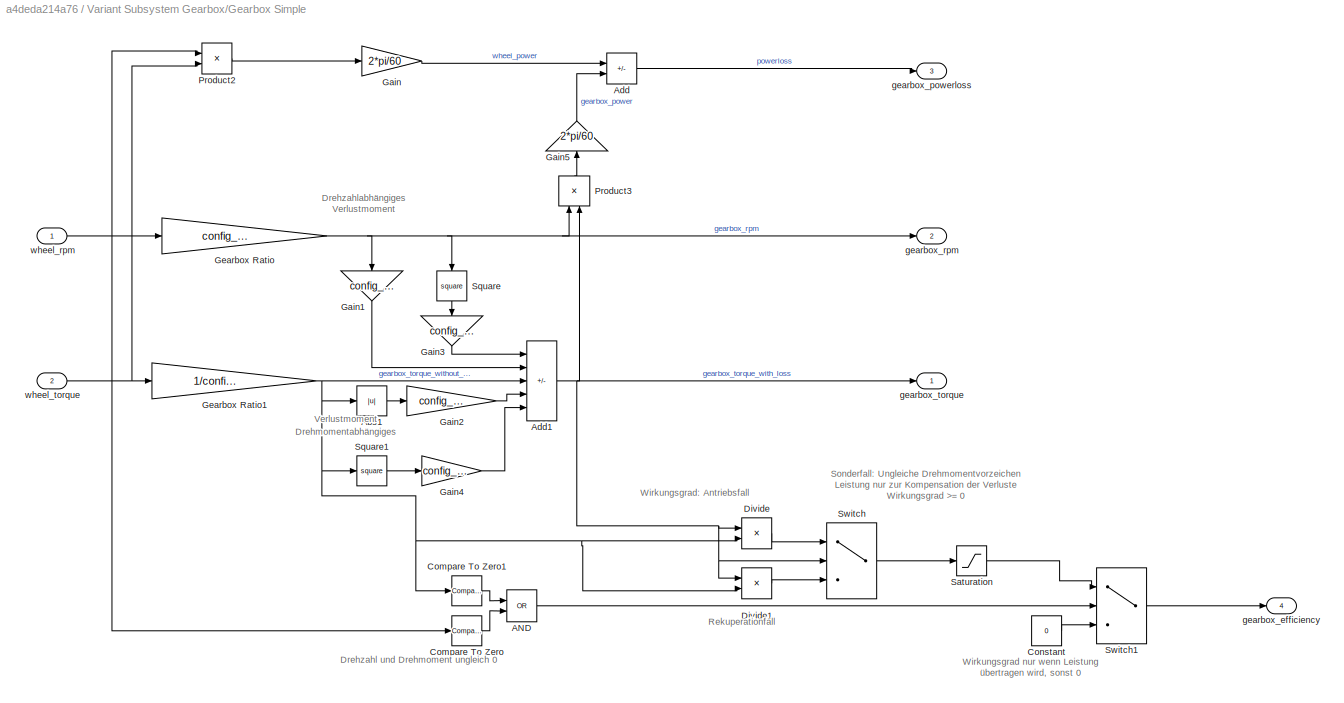
BLOCK [SubSystem] Variant Subsystem Gearbox/Gearbox Simple
  VariantControl = GB_Mode == "Simple"
BLOCK [Logic] Variant Subsystem Gearbox/Gearbox Simple/AND
  AllPortsSameDT = off
  IconShape = distinctive
  Operator = OR
  OutDataTypeStr = boolean
BLOCK [Abs] Variant Subsystem Gearbox/Gearbox Simple/Abs1
  SaturateOnIntegerOverflow = off
BLOCK [Sum] Variant Subsystem Gearbox/Gearbox Simple/Add
  IconShape = rectangular
  Inputs = -+
BLOCK [Sum] Variant Subsystem Gearbox/Gearbox Simple/Add1
  IconShape = rectangular
  Inputs = -+++-
BLOCK [Reference] Variant Subsystem Gearbox/Gearbox Simple/Compare To Zero  REF=simulink/Logic and Bit
Operations/Compare
To Zero
  SourceBlock = simulink/Logic and Bit\nOperations/Compare\nTo Zero
  SourceType = Compare To Zero
BLOCK [Reference] Variant Subsystem Gearbox/Gearbox Simple/Compare To Zero1  REF=simulink/Logic and Bit
Operations/Compare
To Zero
  SourceBlock = simulink/Logic and Bit\nOperations/Compare\nTo Zero
  SourceType = Compare To Zero
BLOCK [Constant] Variant Subsystem Gearbox/Gearbox Simple/Constant
  Value = 0
BLOCK [Product] Variant Subsystem Gearbox/Gearbox Simple/Divide
  Inputs = /*
BLOCK [Product] Variant Subsystem Gearbox/Gearbox Simple/Divide1
  Inputs = */
BLOCK [Gain] Variant Subsystem Gearbox/Gearbox Simple/Gain
  Gain = 2*pi/60
BLOCK [Gain] Variant Subsystem Gearbox/Gearbox Simple/Gain1
  Gain = config_gearbox.k_n1
  NameLocation = left
BLOCK [Gain] Variant Subsystem Gearbox/Gearbox Simple/Gain2
  Gain = config_gearbox.k_M1
BLOCK [Gain] Variant Subsystem Gearbox/Gearbox Simple/Gain3
  Gain = config_gearbox.k_n2
  NameLocation = left
BLOCK [Gain] Variant Subsystem Gearbox/Gearbox Simple/Gain4
  Gain = config_gearbox.k_M2
BLOCK [Gain] Variant Subsystem Gearbox/Gearbox Simple/Gain5
  Gain = 2*pi/60
  NameLocation = right
BLOCK [Gain] Variant Subsystem Gearbox/Gearbox Simple/Gearbox Ratio
  Gain = config_gearbox.ratio
BLOCK [Gain] Variant Subsystem Gearbox/Gearbox Simple/Gearbox Ratio1
  Gain = 1/config_gearbox.ratio
BLOCK [Product] Variant Subsystem Gearbox/Gearbox Simple/Product2
BLOCK [Product] Variant Subsystem Gearbox/Gearbox Simple/Product3
  NameLocation = right
BLOCK [Saturate] Variant Subsystem Gearbox/Gearbox Simple/Saturation
  LowerLimit = 0
  UpperLimit = inf
BLOCK [Math] Variant Subsystem Gearbox/Gearbox Simple/Square
  NameLocation = left
  Operator = square
BLOCK [Math] Variant Subsystem Gearbox/Gearbox Simple/Square1
  Operator = square
BLOCK [Switch] Variant Subsystem Gearbox/Gearbox Simple/Switch
  Criteria = u2 > Threshold
  InputSameDT = off
  SaturateOnIntegerOverflow = off
BLOCK [Switch] Variant Subsystem Gearbox/Gearbox Simple/Switch1
  Criteria = u2 ~= 0
  InputSameDT = off
  SaturateOnIntegerOverflow = off
BLOCK [Outport] Variant Subsystem Gearbox/Gearbox Simple/gearbox_efficiency
  Port = 4
BLOCK [Outport] Variant Subsystem Gearbox/Gearbox Simple/gearbox_powerloss
  Port = 3
BLOCK [Outport] Variant Subsystem Gearbox/Gearbox Simple/gearbox_rpm
  Port = 2
BLOCK [Outport] Variant Subsystem Gearbox/Gearbox Simple/gearbox_torque
BLOCK [Inport] Variant Subsystem Gearbox/Gearbox Simple/wheel_rpm
BLOCK [Inport] Variant Subsystem Gearbox/Gearbox Simple/wheel_torque
  Port = 2
BLOCK [Outport] Variant Subsystem Gearbox/gearbox_efficiency
  Port = 2
BLOCK [Outport] Variant Subsystem Gearbox/gearbox_powerloss
BLOCK [Outport] Variant Subsystem Gearbox/gearbox_rpm
  Port = 4
BLOCK [Outport] Variant Subsystem Gearbox/gearbox_torque
  Port = 3
BLOCK [Inport] Variant Subsystem Gearbox/wheel_rpm
  Port = 2
BLOCK [Inport] Variant Subsystem Gearbox/wheel_torque
BLOCK [SubSystem] Variant Subsystem Motor
  Variant = on
BLOCK [SubSystem] Variant Subsystem Motor/Motor Analytic
  VariantControl = Motor_Mode == "Analytic"
BLOCK [Lookup_n-D] Variant Subsystem Motor/Motor Analytic/2-D Lookup Table
  BreakpointsForDimension1 = Analyse.Betriebsdaten.M_vec(end:-1:1)
  BreakpointsForDimension2 = Analyse.Betriebsdaten.n_m_mesh(Analyse.Optionen.M_tics,:)
  InputPortMap = u0,u1
  InternalRulePriority = Speed
  RndMeth = Simplest
  Table = Analyse.Verluste.P_vges_mesh(end:-1:1,:)
BLOCK [Sum] Variant Subsystem Motor/Motor Analytic/Add
  IconShape = rectangular
BLOCK [Sum] Variant Subsystem Motor/Motor Analytic/Add4
  IconShape = rectangular
BLOCK [Constant] Variant Subsystem Motor/Motor Analytic/Constant1
  Value = 0
BLOCK [Constant] Variant Subsystem Motor/Motor Analytic/Constant2
  Value = 0
BLOCK [SubSystem] Variant Subsystem Motor/Motor Analytic/Friction & Windage
BLOCK [Constant] Variant Subsystem Motor/Motor Analytic/Friction & Windage/Constant
  Value = 2.5
BLOCK [Constant] Variant Subsystem Motor/Motor Analytic/Friction & Windage/Constant1
  Value = 0
BLOCK [Constant] Variant Subsystem Motor/Motor Analytic/Friction & Windage/Constant5
  Value = k_FW
BLOCK [Gain] Variant Subsystem Motor/Motor Analytic/Friction & Windage/Gain
  Gain = 2*pi/60
BLOCK [InportShadow] Variant Subsystem Motor/Motor Analytic/Friction & Windage/In2
BLOCK [Math] Variant Subsystem Motor/Motor Analytic/Friction & Windage/Power
  Operator = pow
BLOCK [Product] Variant Subsystem Motor/Motor Analytic/Friction & Windage/Product
BLOCK [Product] Variant Subsystem Motor/Motor Analytic/Friction & Windage/Product2
  Inputs = */
BLOCK [Switch] Variant Subsystem Motor/Motor Analytic/Friction & Windage/Switch
  Criteria = u2 > Threshold
  InputSameDT = off
  SaturateOnIntegerOverflow = off
BLOCK [Outport] Variant Subsystem Motor/Motor Analytic/Friction & Windage/friction torque
BLOCK [Inport] Variant Subsystem Motor/Motor Analytic/Friction & Windage/gearbox_rpm
BLOCK [Gain] Variant Subsystem Motor/Motor Analytic/Gain1
  Gain = 2*pi/60
BLOCK [Product] Variant Subsystem Motor/Motor Analytic/Product
BLOCK [Product] Variant Subsystem Motor/Motor Analytic/Product1
  Inputs = */
BLOCK [Product] Variant Subsystem Motor/Motor Analytic/Product2
  Inputs = */
BLOCK [Saturate] Variant Subsystem Motor/Motor Analytic/Saturation
  LowerLimit = 0
  UpperLimit = inf
BLOCK [Scope] Variant Subsystem Motor/Motor Analytic/Scope1
  Floating = off
  NumInputPorts = 2
  ScopeSpecificationString = Simulink.scopes.TimeScopeBlockCfg('CurrentConfiguration', extmgr.ConfigurationSet(extmgr.Configuration('Core','General UI',true),extmgr.Configuration('Core','Source UI',true),extmgr.Configuration('Sources','WiredSimulink',true,'DataLoggingVariableName','ScopeData2'),extmgr.Configuration('Visuals','Time Domain',true,'SerializedDisplays',{struct('MinYLimReal','-130.63264','MaxYLimReal','156.1604','Y...<+2159ch>
BLOCK [Switch] Variant Subsystem Motor/Motor Analytic/Switch
  Criteria = u2 > Threshold
  InputSameDT = off
  SaturateOnIntegerOverflow = off
BLOCK [Switch] Variant Subsystem Motor/Motor Analytic/Switch1
  Criteria = u2 ~= 0
  InputSameDT = off
  SaturateOnIntegerOverflow = off
BLOCK [Switch] Variant Subsystem Motor/Motor Analytic/Switch2
  Criteria = u2 ~= 0
  InputSameDT = off
  SaturateOnIntegerOverflow = off
BLOCK [Outport] Variant Subsystem Motor/Motor Analytic/TotalLoss
  Port = 2
BLOCK [Outport] Variant Subsystem Motor/Motor Analytic/efficiency
  Port = 5
BLOCK [Outport] Variant Subsystem Motor/Motor Analytic/friction_torque
  Port = 4
BLOCK [Inport] Variant Subsystem Motor/Motor Analytic/gearbox_rpm
  Port = 2
BLOCK [Inport] Variant Subsystem Motor/Motor Analytic/gearbox_torque
BLOCK [Outport] Variant Subsystem Motor/Motor Analytic/shaft_torque
  Port = 3
BLOCK [Outport] Variant Subsystem Motor/Motor Analytic/terminal_power
BLOCK [SubSystem] Variant Subsystem Motor/Motor Const
  VariantControl = Motor_Mode == "Const"
BLOCK [Sum] Variant Subsystem Motor/Motor Const/Add
  IconShape = rectangular
  Inputs = -+
BLOCK [Constant] Variant Subsystem Motor/Motor Const/Constant
  Value = config_motor.efficiency
BLOCK [SubSystem] Variant Subsystem Motor/Motor Const/Friction & Windage
BLOCK [Constant] Variant Subsystem Motor/Motor Const/Friction & Windage/Constant
  Value = 2.5
BLOCK [Constant] Variant Subsystem Motor/Motor Const/Friction & Windage/Constant1
  Value = 0
BLOCK [Constant] Variant Subsystem Motor/Motor Const/Friction & Windage/Constant5
  Value = k_FW
BLOCK [Gain] Variant Subsystem Motor/Motor Const/Friction & Windage/Gain
  Gain = 2*pi/60
BLOCK [InportShadow] Variant Subsystem Motor/Motor Const/Friction & Windage/In2
BLOCK [Math] Variant Subsystem Motor/Motor Const/Friction & Windage/Power
  Operator = pow
BLOCK [Product] Variant Subsystem Motor/Motor Const/Friction & Windage/Product
BLOCK [Product] Variant Subsystem Motor/Motor Const/Friction & Windage/Product2
  Inputs = */
BLOCK [Switch] Variant Subsystem Motor/Motor Const/Friction & Windage/Switch
  Criteria = u2 > Threshold
  InputSameDT = off
  SaturateOnIntegerOverflow = off
BLOCK [Outport] Variant Subsystem Motor/Motor Const/Friction & Windage/friction torque
BLOCK [Inport] Variant Subsystem Motor/Motor Const/Friction & Windage/gearbox_rpm
BLOCK [Gain] Variant Subsystem Motor/Motor Const/Gain1
  Gain = 2*pi/60
BLOCK [Product] Variant Subsystem Motor/Motor Const/Product
  Inputs = */
BLOCK [Product] Variant Subsystem Motor/Motor Const/Product1
  Inputs = **
BLOCK [Product] Variant Subsystem Motor/Motor Const/Product2
BLOCK [Switch] Variant Subsystem Motor/Motor Const/Switch
  InputSameDT = off
  SaturateOnIntegerOverflow = off
BLOCK [Outport] Variant Subsystem Motor/Motor Const/TotalLoss
  Port = 2
BLOCK [Outport] Variant Subsystem Motor/Motor Const/efficiency
  Port = 5
BLOCK [Outport] Variant Subsystem Motor/Motor Const/friction_torque
  Port = 4
BLOCK [Inport] Variant Subsystem Motor/Motor Const/gearbox_rpm
  Port = 2
BLOCK [Inport] Variant Subsystem Motor/Motor Const/gearbox_torque
BLOCK [Outport] Variant Subsystem Motor/Motor Const/shaft_torque
  Port = 3
BLOCK [Outport] Variant Subsystem Motor/Motor Const/terminal_power
BLOCK [SubSystem] Variant Subsystem Motor/Motor Lookup-Table
  VariantControl = Motor_Mode == "Lookup"
BLOCK [Lookup_n-D] Variant Subsystem Motor/Motor Lookup-Table/2-D Lookup Table
  BreakpointsForDimension1 = motormap.nVec
  BreakpointsForDimension2 = motormap.MVec
  InputPortMap = u0,u1
  InternalRulePriority = Speed
  RndMeth = Simplest
  Table = motormap.Loss
BLOCK [Lookup_n-D] Variant Subsystem Motor/Motor Lookup-Table/2-D Lookup Table1
  BreakpointsForDimension1 = motormap2.nVec
  BreakpointsForDimension2 = motormap2.MVec
  InputPortMap = u0,u1
  InternalRulePriority = Speed
  RndMeth = Simplest
  Table = motormap2.Loss
BLOCK [Sum] Variant Subsystem Motor/Motor Lookup-Table/Add
  IconShape = rectangular
BLOCK [Sum] Variant Subsystem Motor/Motor Lookup-Table/Add1
  IconShape = rectangular
BLOCK [Sum] Variant Subsystem Motor/Motor Lookup-Table/Add2
  IconShape = rectangular
BLOCK [Sum] Variant Subsystem Motor/Motor Lookup-Table/Add3
  IconShape = rectangular
BLOCK [Constant] Variant Subsystem Motor/Motor Lookup-Table/Constant
  Value = config_motor.power1
BLOCK [Constant] Variant Subsystem Motor/Motor Lookup-Table/Constant1
  Value = config_motor.power2
BLOCK [Product] Variant Subsystem Motor/Motor Lookup-Table/Divide
  Inputs = */
BLOCK [Product] Variant Subsystem Motor/Motor Lookup-Table/Divide1
  Inputs = */
BLOCK [Product] Variant Subsystem Motor/Motor Lookup-Table/Divide2
  Inputs = */
BLOCK [Product] Variant Subsystem Motor/Motor Lookup-Table/Divide3
  Inputs = */
BLOCK [SubSystem] Variant Subsystem Motor/Motor Lookup-Table/Friction & Windage
BLOCK [Constant] Variant Subsystem Motor/Motor Lookup-Table/Friction & Windage/Constant
  Value = 2.5
BLOCK [Constant] Variant Subsystem Motor/Motor Lookup-Table/Friction & Windage/Constant1
  Value = 0
BLOCK [Constant] Variant Subsystem Motor/Motor Lookup-Table/Friction & Windage/Constant5
  Value = k_FW
BLOCK [Gain] Variant Subsystem Motor/Motor Lookup-Table/Friction & Windage/Gain
  Gain = 2*pi/60
BLOCK [InportShadow] Variant Subsystem Motor/Motor Lookup-Table/Friction & Windage/In2
BLOCK [Math] Variant Subsystem Motor/Motor Lookup-Table/Friction & Windage/Power
  Operator = pow
BLOCK [Product] Variant Subsystem Motor/Motor Lookup-Table/Friction & Windage/Product
BLOCK [Product] Variant Subsystem Motor/Motor Lookup-Table/Friction & Windage/Product2
  Inputs = */
BLOCK [Switch] Variant Subsystem Motor/Motor Lookup-Table/Friction & Windage/Switch
  Criteria = u2 > Threshold
  InputSameDT = off
  SaturateOnIntegerOverflow = off
BLOCK [Outport] Variant Subsystem Motor/Motor Lookup-Table/Friction & Windage/friction torque
BLOCK [Inport] Variant Subsystem Motor/Motor Lookup-Table/Friction & Windage/gearbox_rpm
BLOCK [Gain] Variant Subsystem Motor/Motor Lookup-Table/Gain
  Gain = 2*pi/60
BLOCK [Product] Variant Subsystem Motor/Motor Lookup-Table/Product
BLOCK [Product] Variant Subsystem Motor/Motor Lookup-Table/Product1
BLOCK [Product] Variant Subsystem Motor/Motor Lookup-Table/Product2
BLOCK [Saturate] Variant Subsystem Motor/Motor Lookup-Table/Saturation
  LowerLimit = 0
  UpperLimit = inf
BLOCK [Switch] Variant Subsystem Motor/Motor Lookup-Table/Switch
  Criteria = u2 ~= 0
  InputSameDT = off
  SaturateOnIntegerOverflow = off
  Threshold = 1
BLOCK [Switch] Variant Subsystem Motor/Motor Lookup-Table/Switch1
  Criteria = u2 ~= 0
  InputSameDT = off
  SaturateOnIntegerOverflow = off
BLOCK [Switch] Variant Subsystem Motor/Motor Lookup-Table/Switch2
  Criteria = u2 > Threshold
  InputSameDT = off
  SaturateOnIntegerOverflow = off
BLOCK [Outport] Variant Subsystem Motor/Motor Lookup-Table/TotalLoss
  Port = 2
BLOCK [Constant] Variant Subsystem Motor/Motor Lookup-Table/Zero
  NameLocation = right
  OutDataTypeStr = Inherit: Inherit via back propagation
  Value = 0
BLOCK [Constant] Variant Subsystem Motor/Motor Lookup-Table/Zero2
  OutDataTypeStr = Inherit: Inherit via back propagation
  Value = 0
BLOCK [Outport] Variant Subsystem Motor/Motor Lookup-Table/efficiency
  Port = 5
BLOCK [Outport] Variant Subsystem Motor/Motor Lookup-Table/friction_torque
  Port = 4
BLOCK [Inport] Variant Subsystem Motor/Motor Lookup-Table/gearbox_rpm
  Port = 2
BLOCK [Inport] Variant Subsystem Motor/Motor Lookup-Table/gearbox_torque
BLOCK [Outport] Variant Subsystem Motor/Motor Lookup-Table/shaft_torque
  Port = 3
BLOCK [Outport] Variant Subsystem Motor/Motor Lookup-Table/terminal_power
BLOCK [SubSystem] Variant Subsystem Motor/Motor Lookup-TableOneMotor
  VariantControl = Motor_Mode == "LookupOneMotor"
BLOCK [Lookup_n-D] Variant Subsystem Motor/Motor Lookup-TableOneMotor/2-D Lookup Table
  BreakpointsForDimension1 = motormap.nVec
  BreakpointsForDimension2 = motormap.MVec
  InputPortMap = u0,u1
  InternalRulePriority = Speed
  RndMeth = Simplest
  Table = motormap.Loss
BLOCK [Sum] Variant Subsystem Motor/Motor Lookup-TableOneMotor/Add
  IconShape = rectangular
BLOCK [Sum] Variant Subsystem Motor/Motor Lookup-TableOneMotor/Add1
  IconShape = rectangular
BLOCK [Constant] Variant Subsystem Motor/Motor Lookup-TableOneMotor/Constant1
  Value = config_motor.motorsCount1
BLOCK [Constant] Variant Subsystem Motor/Motor Lookup-TableOneMotor/Constant2
  Value = config_motor.motorsCount1
BLOCK [Product] Variant Subsystem Motor/Motor Lookup-TableOneMotor/Divide
  Inputs = */
BLOCK [Product] Variant Subsystem Motor/Motor Lookup-TableOneMotor/Divide1
  Inputs = */
BLOCK [Product] Variant Subsystem Motor/Motor Lookup-TableOneMotor/Divide4
  Inputs = */
BLOCK [SubSystem] Variant Subsystem Motor/Motor Lookup-TableOneMotor/Friction & Windage
BLOCK [Constant] Variant Subsystem Motor/Motor Lookup-TableOneMotor/Friction & Windage/Constant
  Value = 2.5
BLOCK [Constant] Variant Subsystem Motor/Motor Lookup-TableOneMotor/Friction & Windage/Constant1
  Value = 0
BLOCK [Constant] Variant Subsystem Motor/Motor Lookup-TableOneMotor/Friction & Windage/Constant5
  Value = k_FW
BLOCK [Gain] Variant Subsystem Motor/Motor Lookup-TableOneMotor/Friction & Windage/Gain
  Gain = 2*pi/60
BLOCK [InportShadow] Variant Subsystem Motor/Motor Lookup-TableOneMotor/Friction & Windage/In2
BLOCK [Math] Variant Subsystem Motor/Motor Lookup-TableOneMotor/Friction & Windage/Power
  Operator = pow
BLOCK [Product] Variant Subsystem Motor/Motor Lookup-TableOneMotor/Friction & Windage/Product
BLOCK [Product] Variant Subsystem Motor/Motor Lookup-TableOneMotor/Friction & Windage/Product2
  Inputs = */
BLOCK [Switch] Variant Subsystem Motor/Motor Lookup-TableOneMotor/Friction & Windage/Switch
  Criteria = u2 > Threshold
  InputSameDT = off
  SaturateOnIntegerOverflow = off
BLOCK [Outport] Variant Subsystem Motor/Motor Lookup-TableOneMotor/Friction & Windage/friction torque
BLOCK [Inport] Variant Subsystem Motor/Motor Lookup-TableOneMotor/Friction & Windage/gearbox_rpm
BLOCK [Gain] Variant Subsystem Motor/Motor Lookup-TableOneMotor/Gain
  Gain = 2*pi/60
BLOCK [SubSystem] Variant Subsystem Motor/Motor Lookup-TableOneMotor/MATLAB Function2
  ErrorFcn = Stateflow.Translate.translate
  PermitHierarchicalResolution = ExplicitOnly
  SFBlockType = MATLAB Function
  TreatAsAtomicUnit = on
BLOCK [Demux] Variant Subsystem Motor/Motor Lookup-TableOneMotor/MATLAB Function2/ Demux 
  Outputs = 1
BLOCK [S-Function] Variant Subsystem Motor/Motor Lookup-TableOneMotor/MATLAB Function2/ SFunction 
  EnableBusSupport = on
  FunctionName = sf_sfun
  PortCounts = [1 2]
  SFcnIsStateOwnerBlock = off
  SFunctionDeploymentMode = off
  Tag = Stateflow S-Function 29
BLOCK [Terminator] Variant Subsystem Motor/Motor Lookup-TableOneMotor/MATLAB Function2/ Terminator 
BLOCK [Inport] Variant Subsystem Motor/Motor Lookup-TableOneMotor/MATLAB Function2/u
BLOCK [Outport] Variant Subsystem Motor/Motor Lookup-TableOneMotor/MATLAB Function2/y
BLOCK [Product] Variant Subsystem Motor/Motor Lookup-TableOneMotor/Product
BLOCK [Product] Variant Subsystem Motor/Motor Lookup-TableOneMotor/Product5
BLOCK [Saturate] Variant Subsystem Motor/Motor Lookup-TableOneMotor/Saturation
  LowerLimit = 0
  UpperLimit = inf
BLOCK [Scope] Variant Subsystem Motor/Motor Lookup-TableOneMotor/Scope
  Floating = off
  NumInputPorts = 1
  ScopeSpecificationString = Simulink.scopes.TimeScopeBlockCfg('CurrentConfiguration', extmgr.ConfigurationSet(extmgr.Configuration('Core','General UI',true),extmgr.Configuration('Core','Source UI',true),extmgr.Configuration('Sources','WiredSimulink',true,'DataLoggingVariableName','ScopeData1'),extmgr.Configuration('Visuals','Time Domain',true,'SerializedDisplays',{struct('MinYLimReal','-10','MaxYLimReal','10','YLabelReal',''...<+849ch>
BLOCK [Scope] Variant Subsystem Motor/Motor Lookup-TableOneMotor/Scope1
  Floating = off
  NumInputPorts = 1
  ScopeSpecificationString = Simulink.scopes.TimeScopeBlockCfg('CurrentConfiguration', extmgr.ConfigurationSet(extmgr.Configuration('Core','General UI',true),extmgr.Configuration('Core','Source UI',true),extmgr.Configuration('Sources','WiredSimulink',true,'DataLoggingVariableName','ScopeData2'),extmgr.Configuration('Visuals','Time Domain',true),extmgr.Configuration('Tools','Plot Navigation',true),extmgr.Configuration('Tools',...<+40ch>
BLOCK [Switch] Variant Subsystem Motor/Motor Lookup-TableOneMotor/Switch
  Criteria = u2 ~= 0
  InputSameDT = off
  SaturateOnIntegerOverflow = off
  Threshold = 1
BLOCK [Switch] Variant Subsystem Motor/Motor Lookup-TableOneMotor/Switch1
  Criteria = u2 ~= 0
  InputSameDT = off
  SaturateOnIntegerOverflow = off
BLOCK [Switch] Variant Subsystem Motor/Motor Lookup-TableOneMotor/Switch2
  Criteria = u2 > Threshold
  InputSameDT = off
  SaturateOnIntegerOverflow = off
BLOCK [Outport] Variant Subsystem Motor/Motor Lookup-TableOneMotor/TotalLoss
  Port = 2
BLOCK [Constant] Variant Subsystem Motor/Motor Lookup-TableOneMotor/Zero
  NameLocation = right
  OutDataTypeStr = Inherit: Inherit via back propagation
  Value = 0
BLOCK [Constant] Variant Subsystem Motor/Motor Lookup-TableOneMotor/Zero2
  OutDataTypeStr = Inherit: Inherit via back propagation
  Value = 0
BLOCK [Outport] Variant Subsystem Motor/Motor Lookup-TableOneMotor/efficiency
  Port = 5
BLOCK [Outport] Variant Subsystem Motor/Motor Lookup-TableOneMotor/friction_torque
  Port = 4
BLOCK [Inport] Variant Subsystem Motor/Motor Lookup-TableOneMotor/gearbox_rpm
  Port = 2
BLOCK [Inport] Variant Subsystem Motor/Motor Lookup-TableOneMotor/gearbox_torque
BLOCK [Outport] Variant Subsystem Motor/Motor Lookup-TableOneMotor/shaft_torque
  Port = 3
BLOCK [Outport] Variant Subsystem Motor/Motor Lookup-TableOneMotor/terminal_power
BLOCK [Outport] Variant Subsystem Motor/TotalLoss
  Port = 2
BLOCK [Outport] Variant Subsystem Motor/efficiency
  Port = 5
BLOCK [Outport] Variant Subsystem Motor/friction_torque
  Port = 4
BLOCK [Inport] Variant Subsystem Motor/gearbox_rpm
  Port = 2
BLOCK [Inport] Variant Subsystem Motor/gearbox_torque
BLOCK [Outport] Variant Subsystem Motor/shaft_torque
  Port = 3
BLOCK [Outport] Variant Subsystem Motor/terminal_power
ANNOTATION Variant Subsystem Gearbox: 1) Add Subsystem or Model blocks as valid variant choices. 2) You cannot connect blocks at this level. At simulation, connectivity is automatically determined, based on the active variant and port name matching.
ANNOTATION Variant Subsystem Gearbox/Gearbox Analytic: Sonderfall: Stillstand
ANNOTATION Variant Subsystem Gearbox/Gearbox Analytic: Wirkungsgrad: Antriebsfall
ANNOTATION Variant Subsystem Gearbox/Gearbox Analytic: Wirkungsgrad: Rekuperation
ANNOTATION Variant Subsystem Gearbox/Gearbox Analytic/Oil Temp Gao: entspricht 2pi/60 * 1e-3
ANNOTATION Variant Subsystem Gearbox/Gearbox Analytic/Variant Subsystem Analytic GB: 1) Add Subsystem or Model blocks as valid variant choices. 2) You cannot connect blocks at this level. At simulation, connectivity is automatically determined, based on the active variant and port name matching.
ANNOTATION Variant Subsystem Gearbox/Gearbox Const: Antriebsfall
ANNOTATION Variant Subsystem Gearbox/Gearbox Const: Rekuperation
ANNOTATION Variant Subsystem Gearbox/Gearbox Lookup-Table/Oil Temp Gao: entspricht 2pi/60 * 1e-3
ANNOTATION Variant Subsystem Gearbox/Gearbox Lookup-Table/Variant Subsystem: 1) Add Subsystem or Model blocks as valid variant choices. 2) You cannot connect blocks at this level. At simulation, connectivity is automatically determined, based on the active variant and port name matching.
ANNOTATION Variant Subsystem Gearbox/Gearbox Lookup-Table/Variant Subsystem/ETA_map: Sonderfall: Stillstand
ANNOTATION Variant Subsystem Gearbox/Gearbox Lookup-Table/Variant Subsystem/ETA_map: Wirkungsgrad: Antriebsfall
ANNOTATION Variant Subsystem Gearbox/Gearbox Lookup-Table/Variant Subsystem/ETA_map: Wirkungsgrad: Rekuperation
ANNOTATION Variant Subsystem Gearbox/Gearbox Lookup-Table/Variant Subsystem/ETA_map/Lookup Gearbox: 1) Add Subsystem or Model blocks as valid variant choices. 2) You cannot connect blocks at this level. At simulation, connectivity is automatically determined, based on the active variant and port name matching.
ANNOTATION Variant Subsystem Gearbox/Gearbox Lookup-Table/Variant Subsystem/LOSS_map: Sonderfall: Stillstand
ANNOTATION Variant Subsystem Gearbox/Gearbox Lookup-Table/Variant Subsystem/LOSS_map: Wirkungsgrad: Antriebsfall
ANNOTATION Variant Subsystem Gearbox/Gearbox Lookup-Table/Variant Subsystem/LOSS_map: Wirkungsgrad: Rekuperation
ANNOTATION Variant Subsystem Gearbox/Gearbox Lookup-Table/Variant Subsystem/LOSS_map/Lookup Gearbox: 1) Add Subsystem or Model blocks as valid variant choices. 2) You cannot connect blocks at this level. At simulation, connectivity is automatically determined, based on the active variant and port name matching.
ANNOTATION Variant Subsystem Gearbox/Gearbox Simple: Drehmomentabhängiges Verlustmoment
ANNOTATION Variant Subsystem Gearbox/Gearbox Simple: Drehzahl und Drehmoment ungleich 0
ANNOTATION Variant Subsystem Gearbox/Gearbox Simple: Drehzahlabhängiges Verlustmoment
ANNOTATION Variant Subsystem Gearbox/Gearbox Simple: Rekuperationfall
ANNOTATION Variant Subsystem Gearbox/Gearbox Simple: Sonderfall: Ungleiche Drehmomentvorzeichen Leistung nur zur Kompensation der Verluste Wirkungsgrad >= 0
ANNOTATION Variant Subsystem Gearbox/Gearbox Simple: Wirkungsgrad nur wenn Leistung übertragen wird, sonst 0
ANNOTATION Variant Subsystem Gearbox/Gearbox Simple: Wirkungsgrad: Antriebsfall
ANNOTATION Variant Subsystem Motor: 1) Add Subsystem or Model blocks as valid variant choices. 2) You cannot connect blocks at this level. At simulation, connectivity is automatically determined, based on the active variant and port name matching.
ANNOTATION Variant Subsystem Motor/Motor Analytic: Antriebsfall
ANNOTATION Variant Subsystem Motor/Motor Analytic: Rekuperation
ANNOTATION Variant Subsystem Motor/Motor Analytic: Sonderfall: keine mech. Leistung
ANNOTATION Variant Subsystem Motor/Motor Analytic: Sonderfall: keine mech. Leistung gefordert
ANNOTATION Variant Subsystem Motor/Motor Analytic/Friction & Windage: Gleichung für mechanische Verlustleistung: P_FW = k_FW * n^2.5
ANNOTATION Variant Subsystem Motor/Motor Const: Antriebsfall
ANNOTATION Variant Subsystem Motor/Motor Const: Rekuperation
ANNOTATION Variant Subsystem Motor/Motor Const/Friction & Windage: Gleichung für mechanische Verlustleistung: P_FW = k_FW * n^2.5
ANNOTATION Variant Subsystem Motor/Motor Lookup-Table: Antriebsfall
ANNOTATION Variant Subsystem Motor/Motor Lookup-Table: Rekuperation
ANNOTATION Variant Subsystem Motor/Motor Lookup-Table: Sonderfall: Stillstand
ANNOTATION Variant Subsystem Motor/Motor Lookup-Table/Friction & Windage: Gleichung für mechanische Verlustleistung: P_FW = k_FW * n^2.5
ANNOTATION Variant Subsystem Motor/Motor Lookup-TableOneMotor: Antriebsfall
ANNOTATION Variant Subsystem Motor/Motor Lookup-TableOneMotor: Rekuperation
ANNOTATION Variant Subsystem Motor/Motor Lookup-TableOneMotor: Sonderfall: Stillstand
ANNOTATION Variant Subsystem Motor/Motor Lookup-TableOneMotor/Friction & Windage: Gleichung für mechanische Verlustleistung: P_FW = k_FW * n^2.5
LINE Bus Creator1:1 -> To Workspace:1
LINE Constant:1 -> Relational Operator:1
LINE Gain1:1 -> Bus Creator1:7
LINE Gain2:1 -> Energyloss Gearbox in Wh:1
LINE Gain:1 -> Bus Creator1:2
LINE Integrator:1 -> Gain2:1
LINE Model1:1 -> Scope:1
NET Model1:2 -> Model:1, Scope:2
NET Model1:3 -> Model:2, Scope:3
NET Model:1 -> Bus Creator1:1, Product3:1, Relational Operator:2, Variant Subsystem Gearbox:1
NET Model:2 -> Product3:2, Variant Subsystem Gearbox:2
LINE Product3:1 -> Gain:1
LINE Product4:1 -> Gain1:1
LINE Relational Operator:1 -> To Workspace1:1
NET Variant Subsystem Gearbox/Gearbox Analytic/Add:1 -> Variant Subsystem Gearbox/Gearbox Analytic/Divide1:2, Variant Subsystem Gearbox/Gearbox Analytic/Divide2:2, Variant Subsystem Gearbox/Gearbox Analytic/Divide:1, Variant Subsystem Gearbox/Gearbox Analytic/Switch2:2, Variant Subsystem Gearbox/Gearbox Analytic/Switch:2
LINE Variant Subsystem Gearbox/Gearbox Analytic/Constant1:1 -> Variant Subsystem Gearbox/Gearbox Analytic/Divide:3
NET Variant Subsystem Gearbox/Gearbox Analytic/Constant2:1 -> Variant Subsystem Gearbox/Gearbox Analytic/Product2:2, Variant Subsystem Gearbox/Gearbox Analytic/Product:2
LINE Variant Subsystem Gearbox/Gearbox Analytic/Constant3:1 -> Variant Subsystem Gearbox/Gearbox Analytic/Switch2:3
LINE Variant Subsystem Gearbox/Gearbox Analytic/Constant:1 -> Variant Subsystem Gearbox/Gearbox Analytic/Product1:1
LINE Variant Subsystem Gearbox/Gearbox Analytic/Divide1:1 -> Variant Subsystem Gearbox/Gearbox Analytic/Switch:1
LINE Variant Subsystem Gearbox/Gearbox Analytic/Divide2:1 -> Variant Subsystem Gearbox/Gearbox Analytic/Switch:3
LINE Variant Subsystem Gearbox/Gearbox Analytic/Divide:1 -> Variant Subsystem Gearbox/Gearbox Analytic/Switch1:1
NET Variant Subsystem Gearbox/Gearbox Analytic/Oil Temp Gao/MATLAB Function:1 -> Variant Subsystem Gearbox/Gearbox Analytic/Oil Temp Gao/Memory1:1, Variant Subsystem Gearbox/Gearbox Analytic/Oil Temp Gao/Scope:1, Variant Subsystem Gearbox/Gearbox Analytic/Oil Temp Gao/temp:1
LINE Variant Subsystem Gearbox/Gearbox Analytic/Oil Temp Gao/Memory1:1 -> Variant Subsystem Gearbox/Gearbox Analytic/Oil Temp Gao/MATLAB Function:1
LINE Variant Subsystem Gearbox/Gearbox Analytic/Oil Temp Gao/Multiply5:1 -> Variant Subsystem Gearbox/Gearbox Analytic/Oil Temp Gao/MATLAB Function:2
LINE Variant Subsystem Gearbox/Gearbox Analytic/Oil Temp Gao/Product2:1 -> Variant Subsystem Gearbox/Gearbox Analytic/Oil Temp Gao/Multiply5:1
LINE Variant Subsystem Gearbox/Gearbox Analytic/Oil Temp Gao/T_wheel:1 -> Variant Subsystem Gearbox/Gearbox Analytic/Oil Temp Gao/Product2:1
NET Variant Subsystem Gearbox/Gearbox Analytic/Oil Temp Gao/rpm_wheel:1 -> Variant Subsystem Gearbox/Gearbox Analytic/Oil Temp Gao/MATLAB Function:3, Variant Subsystem Gearbox/Gearbox Analytic/Oil Temp Gao/Product2:2
LINE Variant Subsystem Gearbox/Gearbox Analytic/Oil Temp Gao:1 -> Variant Subsystem Gearbox/Gearbox Analytic/Scope:1
NET Variant Subsystem Gearbox/Gearbox Analytic/Oil Temp/IC:1 -> Variant Subsystem Gearbox/Gearbox Analytic/Oil Temp/Memory1:1, Variant Subsystem Gearbox/Gearbox Analytic/Oil Temp/Scope:1, Variant Subsystem Gearbox/Gearbox Analytic/Oil Temp/temp:1
LINE Variant Subsystem Gearbox/Gearbox Analytic/Oil Temp/MATLAB Function:1 -> Variant Subsystem Gearbox/Gearbox Analytic/Oil Temp/IC:1
LINE Variant Subsystem Gearbox/Gearbox Analytic/Oil Temp/Memory1:1 -> Variant Subsystem Gearbox/Gearbox Analytic/Oil Temp/MATLAB Function:1
LINE Variant Subsystem Gearbox/Gearbox Analytic/Oil Temp/Memory2:1 -> Variant Subsystem Gearbox/Gearbox Analytic/Oil Temp/MATLAB Function:2
LINE Variant Subsystem Gearbox/Gearbox Analytic/Oil Temp/P_V:1 -> Variant Subsystem Gearbox/Gearbox Analytic/Oil Temp/Memory2:1
NET Variant Subsystem Gearbox/Gearbox Analytic/Oil Temp:1 -> Variant Subsystem Gearbox/Gearbox Analytic/Scope:2, Variant Subsystem Gearbox/Gearbox Analytic/Variant Subsystem Analytic GB:3
NET Variant Subsystem Gearbox/Gearbox Analytic/Product1:1 -> Variant Subsystem Gearbox/Gearbox Analytic/Add:1, Variant Subsystem Gearbox/Gearbox Analytic/Divide1:1, Variant Subsystem Gearbox/Gearbox Analytic/Divide2:1
LINE Variant Subsystem Gearbox/Gearbox Analytic/Product2:1 -> Variant Subsystem Gearbox/Gearbox Analytic/Switch1:3
NET Variant Subsystem Gearbox/Gearbox Analytic/Product:1 -> Variant Subsystem Gearbox/Gearbox Analytic/Divide:2, Variant Subsystem Gearbox/Gearbox Analytic/Switch1:2, Variant Subsystem Gearbox/Gearbox Analytic/gearbox_rpm:1
LINE Variant Subsystem Gearbox/Gearbox Analytic/Saturation1:1 -> Variant Subsystem Gearbox/Gearbox Analytic/Switch2:1
LINE Variant Subsystem Gearbox/Gearbox Analytic/Switch1:1 -> Variant Subsystem Gearbox/Gearbox Analytic/gearbox_torque:1
LINE Variant Subsystem Gearbox/Gearbox Analytic/Switch2:1 -> Variant Subsystem Gearbox/Gearbox Analytic/gearbox_efficiency:1
LINE Variant Subsystem Gearbox/Gearbox Analytic/Switch:1 -> Variant Subsystem Gearbox/Gearbox Analytic/Saturation1:1
LINE Variant Subsystem Gearbox/Gearbox Analytic/Variant Subsystem Analytic GB/Einstufig_Achsparallel/Add:1 -> Variant Subsystem Gearbox/Gearbox Analytic/Variant Subsystem Analytic GB/Einstufig_Achsparallel/P_V:1
LINE Variant Subsystem Gearbox/Gearbox Analytic/Variant Subsystem Analytic GB/Einstufig_Achsparallel/MATLAB Function:1 -> Variant Subsystem Gearbox/Gearbox Analytic/Variant Subsystem Analytic GB/Einstufig_Achsparallel/Add:1
LINE Variant Subsystem Gearbox/Gearbox Analytic/Variant Subsystem Analytic GB/Einstufig_Achsparallel/Temp:1 -> Variant Subsystem Gearbox/Gearbox Analytic/Variant Subsystem Analytic GB/Einstufig_Achsparallel/MATLAB Function:3
NET Variant Subsystem Gearbox/Gearbox Analytic/Variant Subsystem Analytic GB/Einstufig_Achsparallel/wheel_rpm:1 -> Variant Subsystem Gearbox/Gearbox Analytic/Variant Subsystem Analytic GB/Einstufig_Achsparallel/MATLAB Function:2, Variant Subsystem Gearbox/Gearbox Analytic/Variant Subsystem Analytic GB/Einstufig_Achsparallel/Ölpumpe:1
LINE Variant Subsystem Gearbox/Gearbox Analytic/Variant Subsystem Analytic GB/Einstufig_Achsparallel/wheel_torque:1 -> Variant Subsystem Gearbox/Gearbox Analytic/Variant Subsystem Analytic GB/Einstufig_Achsparallel/MATLAB Function:1
LINE Variant Subsystem Gearbox/Gearbox Analytic/Variant Subsystem Analytic GB/Einstufig_Achsparallel/Ölpumpe/Constant1:1 -> Variant Subsystem Gearbox/Gearbox Analytic/Variant Subsystem Analytic GB/Einstufig_Achsparallel/Ölpumpe/Product:2
LINE Variant Subsystem Gearbox/Gearbox Analytic/Variant Subsystem Analytic GB/Einstufig_Achsparallel/Ölpumpe/Constant:1 -> Variant Subsystem Gearbox/Gearbox Analytic/Variant Subsystem Analytic GB/Einstufig_Achsparallel/Ölpumpe/Product:3
NET Variant Subsystem Gearbox/Gearbox Analytic/Variant Subsystem Analytic GB/Einstufig_Achsparallel/Ölpumpe/Product:1 -> Variant Subsystem Gearbox/Gearbox Analytic/Variant Subsystem Analytic GB/Einstufig_Achsparallel/Ölpumpe/Scope:1, Variant Subsystem Gearbox/Gearbox Analytic/Variant Subsystem Analytic GB/Einstufig_Achsparallel/Ölpumpe/power_oilpump:1
LINE Variant Subsystem Gearbox/Gearbox Analytic/Variant Subsystem Analytic GB/Einstufig_Achsparallel/Ölpumpe/nrad:1 -> Variant Subsystem Gearbox/Gearbox Analytic/Variant Subsystem Analytic GB/Einstufig_Achsparallel/Ölpumpe/Product:1
LINE Variant Subsystem Gearbox/Gearbox Analytic/Variant Subsystem Analytic GB/Einstufig_Achsparallel/Ölpumpe:1 -> Variant Subsystem Gearbox/Gearbox Analytic/Variant Subsystem Analytic GB/Einstufig_Achsparallel/Add:2
LINE Variant Subsystem Gearbox/Gearbox Analytic/Variant Subsystem Analytic GB/Zweistufig_Achsparallel/Add:1 -> Variant Subsystem Gearbox/Gearbox Analytic/Variant Subsystem Analytic GB/Zweistufig_Achsparallel/P_V:1
LINE Variant Subsystem Gearbox/Gearbox Analytic/Variant Subsystem Analytic GB/Zweistufig_Achsparallel/MATLAB Function:1 -> Variant Subsystem Gearbox/Gearbox Analytic/Variant Subsystem Analytic GB/Zweistufig_Achsparallel/Add:1
LINE Variant Subsystem Gearbox/Gearbox Analytic/Variant Subsystem Analytic GB/Zweistufig_Achsparallel/Temp:1 -> Variant Subsystem Gearbox/Gearbox Analytic/Variant Subsystem Analytic GB/Zweistufig_Achsparallel/MATLAB Function:3
NET Variant Subsystem Gearbox/Gearbox Analytic/Variant Subsystem Analytic GB/Zweistufig_Achsparallel/wheel_rpm:1 -> Variant Subsystem Gearbox/Gearbox Analytic/Variant Subsystem Analytic GB/Zweistufig_Achsparallel/MATLAB Function:2, Variant Subsystem Gearbox/Gearbox Analytic/Variant Subsystem Analytic GB/Zweistufig_Achsparallel/Ölpumpe:1
LINE Variant Subsystem Gearbox/Gearbox Analytic/Variant Subsystem Analytic GB/Zweistufig_Achsparallel/wheel_torque:1 -> Variant Subsystem Gearbox/Gearbox Analytic/Variant Subsystem Analytic GB/Zweistufig_Achsparallel/MATLAB Function:1
LINE Variant Subsystem Gearbox/Gearbox Analytic/Variant Subsystem Analytic GB/Zweistufig_Achsparallel/Ölpumpe/Constant1:1 -> Variant Subsystem Gearbox/Gearbox Analytic/Variant Subsystem Analytic GB/Zweistufig_Achsparallel/Ölpumpe/Product:2
LINE Variant Subsystem Gearbox/Gearbox Analytic/Variant Subsystem Analytic GB/Zweistufig_Achsparallel/Ölpumpe/Constant:1 -> Variant Subsystem Gearbox/Gearbox Analytic/Variant Subsystem Analytic GB/Zweistufig_Achsparallel/Ölpumpe/Product:3
NET Variant Subsystem Gearbox/Gearbox Analytic/Variant Subsystem Analytic GB/Zweistufig_Achsparallel/Ölpumpe/Product:1 -> Variant Subsystem Gearbox/Gearbox Analytic/Variant Subsystem Analytic GB/Zweistufig_Achsparallel/Ölpumpe/Scope:1, Variant Subsystem Gearbox/Gearbox Analytic/Variant Subsystem Analytic GB/Zweistufig_Achsparallel/Ölpumpe/power_oilpump:1
LINE Variant Subsystem Gearbox/Gearbox Analytic/Variant Subsystem Analytic GB/Zweistufig_Achsparallel/Ölpumpe/nrad:1 -> Variant Subsystem Gearbox/Gearbox Analytic/Variant Subsystem Analytic GB/Zweistufig_Achsparallel/Ölpumpe/Product:1
LINE Variant Subsystem Gearbox/Gearbox Analytic/Variant Subsystem Analytic GB/Zweistufig_Achsparallel/Ölpumpe:1 -> Variant Subsystem Gearbox/Gearbox Analytic/Variant Subsystem Analytic GB/Zweistufig_Achsparallel/Add:2
LINE Variant Subsystem Gearbox/Gearbox Analytic/Variant Subsystem Analytic GB/Zweistufig_Koaxial/Add:1 -> Variant Subsystem Gearbox/Gearbox Analytic/Variant Subsystem Analytic GB/Zweistufig_Koaxial/P_V:1
LINE Variant Subsystem Gearbox/Gearbox Analytic/Variant Subsystem Analytic GB/Zweistufig_Koaxial/MATLAB Function:1 -> Variant Subsystem Gearbox/Gearbox Analytic/Variant Subsystem Analytic GB/Zweistufig_Koaxial/Add:1
LINE Variant Subsystem Gearbox/Gearbox Analytic/Variant Subsystem Analytic GB/Zweistufig_Koaxial/Temp:1 -> Variant Subsystem Gearbox/Gearbox Analytic/Variant Subsystem Analytic GB/Zweistufig_Koaxial/MATLAB Function:3
NET Variant Subsystem Gearbox/Gearbox Analytic/Variant Subsystem Analytic GB/Zweistufig_Koaxial/wheel_rpm:1 -> Variant Subsystem Gearbox/Gearbox Analytic/Variant Subsystem Analytic GB/Zweistufig_Koaxial/MATLAB Function:2, Variant Subsystem Gearbox/Gearbox Analytic/Variant Subsystem Analytic GB/Zweistufig_Koaxial/Ölpumpe:1
LINE Variant Subsystem Gearbox/Gearbox Analytic/Variant Subsystem Analytic GB/Zweistufig_Koaxial/wheel_torque:1 -> Variant Subsystem Gearbox/Gearbox Analytic/Variant Subsystem Analytic GB/Zweistufig_Koaxial/MATLAB Function:1
LINE Variant Subsystem Gearbox/Gearbox Analytic/Variant Subsystem Analytic GB/Zweistufig_Koaxial/Ölpumpe/Constant1:1 -> Variant Subsystem Gearbox/Gearbox Analytic/Variant Subsystem Analytic GB/Zweistufig_Koaxial/Ölpumpe/Product:2
LINE Variant Subsystem Gearbox/Gearbox Analytic/Variant Subsystem Analytic GB/Zweistufig_Koaxial/Ölpumpe/Constant:1 -> Variant Subsystem Gearbox/Gearbox Analytic/Variant Subsystem Analytic GB/Zweistufig_Koaxial/Ölpumpe/Product:3
NET Variant Subsystem Gearbox/Gearbox Analytic/Variant Subsystem Analytic GB/Zweistufig_Koaxial/Ölpumpe/Product:1 -> Variant Subsystem Gearbox/Gearbox Analytic/Variant Subsystem Analytic GB/Zweistufig_Koaxial/Ölpumpe/Scope:1, Variant Subsystem Gearbox/Gearbox Analytic/Variant Subsystem Analytic GB/Zweistufig_Koaxial/Ölpumpe/power_oilpump:1
LINE Variant Subsystem Gearbox/Gearbox Analytic/Variant Subsystem Analytic GB/Zweistufig_Koaxial/Ölpumpe/nrad:1 -> Variant Subsystem Gearbox/Gearbox Analytic/Variant Subsystem Analytic GB/Zweistufig_Koaxial/Ölpumpe/Product:1
LINE Variant Subsystem Gearbox/Gearbox Analytic/Variant Subsystem Analytic GB/Zweistufig_Koaxial/Ölpumpe:1 -> Variant Subsystem Gearbox/Gearbox Analytic/Variant Subsystem Analytic GB/Zweistufig_Koaxial/Add:2
NET Variant Subsystem Gearbox/Gearbox Analytic/Variant Subsystem Analytic GB:1 -> Variant Subsystem Gearbox/Gearbox Analytic/Add:2, Variant Subsystem Gearbox/Gearbox Analytic/Oil Temp:1, Variant Subsystem Gearbox/Gearbox Analytic/gearbox_powerloss:1
NET Variant Subsystem Gearbox/Gearbox Analytic/wheel_rpm:1 -> Variant Subsystem Gearbox/Gearbox Analytic/Oil Temp Gao:2, Variant Subsystem Gearbox/Gearbox Analytic/Product1:3, Variant Subsystem Gearbox/Gearbox Analytic/Product:1, Variant Subsystem Gearbox/Gearbox Analytic/Variant Subsystem Analytic GB:2
NET Variant Subsystem Gearbox/Gearbox Analytic/wheel_torque:1 -> Variant Subsystem Gearbox/Gearbox Analytic/Oil Temp Gao:1, Variant Subsystem Gearbox/Gearbox Analytic/Product1:2, Variant Subsystem Gearbox/Gearbox Analytic/Product2:1, Variant Subsystem Gearbox/Gearbox Analytic/Variant Subsystem Analytic GB:1
LINE Variant Subsystem Gearbox/Gearbox Const/Add:1 -> Variant Subsystem Gearbox/Gearbox Const/gearbox_powerloss:1
NET Variant Subsystem Gearbox/Gearbox Const/Constant:1 -> Variant Subsystem Gearbox/Gearbox Const/Product1:2, Variant Subsystem Gearbox/Gearbox Const/Product:2, Variant Subsystem Gearbox/Gearbox Const/gearbox_efficiency:1
LINE Variant Subsystem Gearbox/Gearbox Const/Gain1:1 -> Variant Subsystem Gearbox/Gearbox Const/Add:2
LINE Variant Subsystem Gearbox/Gearbox Const/Gain:1 -> Variant Subsystem Gearbox/Gearbox Const/Add:1
NET Variant Subsystem Gearbox/Gearbox Const/Gearbox Ratio1:1 -> Variant Subsystem Gearbox/Gearbox Const/Product1:1, Variant Subsystem Gearbox/Gearbox Const/Product:1, Variant Subsystem Gearbox/Gearbox Const/Switch:2
NET Variant Subsystem Gearbox/Gearbox Const/Gearbox Ratio:1 -> Variant Subsystem Gearbox/Gearbox Const/Product3:1, Variant Subsystem Gearbox/Gearbox Const/gearbox_rpm:1
LINE Variant Subsystem Gearbox/Gearbox Const/Product1:1 -> Variant Subsystem Gearbox/Gearbox Const/Switch:3
LINE Variant Subsystem Gearbox/Gearbox Const/Product2:1 -> Variant Subsystem Gearbox/Gearbox Const/Gain:1
LINE Variant Subsystem Gearbox/Gearbox Const/Product3:1 -> Variant Subsystem Gearbox/Gearbox Const/Gain1:1
LINE Variant Subsystem Gearbox/Gearbox Const/Product:1 -> Variant Subsystem Gearbox/Gearbox Const/Switch:1
NET Variant Subsystem Gearbox/Gearbox Const/Switch:1 -> Variant Subsystem Gearbox/Gearbox Const/Product3:2, Variant Subsystem Gearbox/Gearbox Const/gearbox_torque:1
NET Variant Subsystem Gearbox/Gearbox Const/wheel_rpm:1 -> Variant Subsystem Gearbox/Gearbox Const/Gearbox Ratio:1, Variant Subsystem Gearbox/Gearbox Const/Product2:1
NET Variant Subsystem Gearbox/Gearbox Const/wheel_torque:1 -> Variant Subsystem Gearbox/Gearbox Const/Gearbox Ratio1:1, Variant Subsystem Gearbox/Gearbox Const/Product2:2
NET Variant Subsystem Gearbox/Gearbox Lookup-Table/Oil Temp Gao/MATLAB Function:1 -> Variant Subsystem Gearbox/Gearbox Lookup-Table/Oil Temp Gao/Memory1:1, Variant Subsystem Gearbox/Gearbox Lookup-Table/Oil Temp Gao/Scope:1, Variant Subsystem Gearbox/Gearbox Lookup-Table/Oil Temp Gao/temp:1
LINE Variant Subsystem Gearbox/Gearbox Lookup-Table/Oil Temp Gao/Memory1:1 -> Variant Subsystem Gearbox/Gearbox Lookup-Table/Oil Temp Gao/MATLAB Function:1
LINE Variant Subsystem Gearbox/Gearbox Lookup-Table/Oil Temp Gao/Multiply5:1 -> Variant Subsystem Gearbox/Gearbox Lookup-Table/Oil Temp Gao/MATLAB Function:2
LINE Variant Subsystem Gearbox/Gearbox Lookup-Table/Oil Temp Gao/Product2:1 -> Variant Subsystem Gearbox/Gearbox Lookup-Table/Oil Temp Gao/Multiply5:1
LINE Variant Subsystem Gearbox/Gearbox Lookup-Table/Oil Temp Gao/T_wheel:1 -> Variant Subsystem Gearbox/Gearbox Lookup-Table/Oil Temp Gao/Product2:1
NET Variant Subsystem Gearbox/Gearbox Lookup-Table/Oil Temp Gao/rpm_wheel:1 -> Variant Subsystem Gearbox/Gearbox Lookup-Table/Oil Temp Gao/MATLAB Function:3, Variant Subsystem Gearbox/Gearbox Lookup-Table/Oil Temp Gao/Product2:2
LINE Variant Subsystem Gearbox/Gearbox Lookup-Table/Oil Temp Gao:1 -> Variant Subsystem Gearbox/Gearbox Lookup-Table/Scope:2
NET Variant Subsystem Gearbox/Gearbox Lookup-Table/Oil Temp/IC:1 -> Variant Subsystem Gearbox/Gearbox Lookup-Table/Oil Temp/Memory1:1, Variant Subsystem Gearbox/Gearbox Lookup-Table/Oil Temp/Scope:1, Variant Subsystem Gearbox/Gearbox Lookup-Table/Oil Temp/temp:1
LINE Variant Subsystem Gearbox/Gearbox Lookup-Table/Oil Temp/MATLAB Function:1 -> Variant Subsystem Gearbox/Gearbox Lookup-Table/Oil Temp/IC:1
LINE Variant Subsystem Gearbox/Gearbox Lookup-Table/Oil Temp/Memory1:1 -> Variant Subsystem Gearbox/Gearbox Lookup-Table/Oil Temp/MATLAB Function:1
LINE Variant Subsystem Gearbox/Gearbox Lookup-Table/Oil Temp/Memory2:1 -> Variant Subsystem Gearbox/Gearbox Lookup-Table/Oil Temp/MATLAB Function:2
LINE Variant Subsystem Gearbox/Gearbox Lookup-Table/Oil Temp/P_V:1 -> Variant Subsystem Gearbox/Gearbox Lookup-Table/Oil Temp/Memory2:1
NET Variant Subsystem Gearbox/Gearbox Lookup-Table/Oil Temp:1 -> Variant Subsystem Gearbox/Gearbox Lookup-Table/Scope:1, Variant Subsystem Gearbox/Gearbox Lookup-Table/Variant Subsystem:3
NET Variant Subsystem Gearbox/Gearbox Lookup-Table/Variant Subsystem/ETA_map/Add1:1 -> Variant Subsystem Gearbox/Gearbox Lookup-Table/Variant Subsystem/ETA_map/Add2:1, Variant Subsystem Gearbox/Gearbox Lookup-Table/Variant Subsystem/ETA_map/loss_lockup:1
NET Variant Subsystem Gearbox/Gearbox Lookup-Table/Variant Subsystem/ETA_map/Add2:1 -> Variant Subsystem Gearbox/Gearbox Lookup-Table/Variant Subsystem/ETA_map/Divide1:2, Variant Subsystem Gearbox/Gearbox Lookup-Table/Variant Subsystem/ETA_map/Divide6:1, Variant Subsystem Gearbox/Gearbox Lookup-Table/Variant Subsystem/ETA_map/Divide:1, Variant Subsystem Gearbox/Gearbox Lookup-Table/Variant Subsystem/ETA_map/Switch2:2
LINE Variant Subsystem Gearbox/Gearbox Lookup-Table/Variant Subsystem/ETA_map/Constant5:1 -> Variant Subsystem Gearbox/Gearbox Lookup-Table/Variant Subsystem/ETA_map/Divide2:1
LINE Variant Subsystem Gearbox/Gearbox Lookup-Table/Variant Subsystem/ETA_map/Constant6:1 -> Variant Subsystem Gearbox/Gearbox Lookup-Table/Variant Subsystem/ETA_map/Subtract1:2
LINE Variant Subsystem Gearbox/Gearbox Lookup-Table/Variant Subsystem/ETA_map/Constant9:1 -> Variant Subsystem Gearbox/Gearbox Lookup-Table/Variant Subsystem/ETA_map/Divide3:2
LINE Variant Subsystem Gearbox/Gearbox Lookup-Table/Variant Subsystem/ETA_map/Divide1:1 -> Variant Subsystem Gearbox/Gearbox Lookup-Table/Variant Subsystem/ETA_map/Switch2:3
LINE Variant Subsystem Gearbox/Gearbox Lookup-Table/Variant Subsystem/ETA_map/Divide2:1 -> Variant Subsystem Gearbox/Gearbox Lookup-Table/Variant Subsystem/ETA_map/Switch:1
LINE Variant Subsystem Gearbox/Gearbox Lookup-Table/Variant Subsystem/ETA_map/Divide3:1 -> Variant Subsystem Gearbox/Gearbox Lookup-Table/Variant Subsystem/ETA_map/Switch:3
LINE Variant Subsystem Gearbox/Gearbox Lookup-Table/Variant Subsystem/ETA_map/Divide6:1 -> Variant Subsystem Gearbox/Gearbox Lookup-Table/Variant Subsystem/ETA_map/Switch4:1
LINE Variant Subsystem Gearbox/Gearbox Lookup-Table/Variant Subsystem/ETA_map/Divide:1 -> Variant Subsystem Gearbox/Gearbox Lookup-Table/Variant Subsystem/ETA_map/Switch2:1
NET Variant Subsystem Gearbox/Gearbox Lookup-Table/Variant Subsystem/ETA_map/Gain1:1 -> Variant Subsystem Gearbox/Gearbox Lookup-Table/Variant Subsystem/ETA_map/Divide6:2, Variant Subsystem Gearbox/Gearbox Lookup-Table/Variant Subsystem/ETA_map/Switch4:2
NET Variant Subsystem Gearbox/Gearbox Lookup-Table/Variant Subsystem/ETA_map/Gain:1 -> Variant Subsystem Gearbox/Gearbox Lookup-Table/Variant Subsystem/ETA_map/Add2:2, Variant Subsystem Gearbox/Gearbox Lookup-Table/Variant Subsystem/ETA_map/Divide1:1, Variant Subsystem Gearbox/Gearbox Lookup-Table/Variant Subsystem/ETA_map/Divide:2, Variant Subsystem Gearbox/Gearbox Lookup-Table/Variant Subsystem/ETA_map/Product3:2
NET Variant Subsystem Gearbox/Gearbox Lookup-Table/Variant Subsystem/ETA_map/Gearbox Ratio:1 -> Variant Subsystem Gearbox/Gearbox Lookup-Table/Variant Subsystem/ETA_map/Gain1:1, Variant Subsystem Gearbox/Gearbox Lookup-Table/Variant Subsystem/ETA_map/gearbox_rpm:1
LINE Variant Subsystem Gearbox/Gearbox Lookup-Table/Variant Subsystem/ETA_map/Lookup Gearbox/Lookup with Temp/RPM:1 -> Variant Subsystem Gearbox/Gearbox Lookup-Table/Variant Subsystem/ETA_map/Lookup Gearbox/Lookup with Temp/n-D Lookup Table:2
LINE Variant Subsystem Gearbox/Gearbox Lookup-Table/Variant Subsystem/ETA_map/Lookup Gearbox/Lookup with Temp/Temp:1 -> Variant Subsystem Gearbox/Gearbox Lookup-Table/Variant Subsystem/ETA_map/Lookup Gearbox/Lookup with Temp/n-D Lookup Table:3
LINE Variant Subsystem Gearbox/Gearbox Lookup-Table/Variant Subsystem/ETA_map/Lookup Gearbox/Lookup with Temp/Torque:1 -> Variant Subsystem Gearbox/Gearbox Lookup-Table/Variant Subsystem/ETA_map/Lookup Gearbox/Lookup with Temp/n-D Lookup Table:1
LINE Variant Subsystem Gearbox/Gearbox Lookup-Table/Variant Subsystem/ETA_map/Lookup Gearbox/Lookup with Temp/n-D Lookup Table:1 -> Variant Subsystem Gearbox/Gearbox Lookup-Table/Variant Subsystem/ETA_map/Lookup Gearbox/Lookup with Temp/Eta:1
LINE Variant Subsystem Gearbox/Gearbox Lookup-Table/Variant Subsystem/ETA_map/Lookup Gearbox/Lookup without Temp/RPM:1 -> Variant Subsystem Gearbox/Gearbox Lookup-Table/Variant Subsystem/ETA_map/Lookup Gearbox/Lookup without Temp/n-D Lookup Table:2
LINE Variant Subsystem Gearbox/Gearbox Lookup-Table/Variant Subsystem/ETA_map/Lookup Gearbox/Lookup without Temp/Torque:1 -> Variant Subsystem Gearbox/Gearbox Lookup-Table/Variant Subsystem/ETA_map/Lookup Gearbox/Lookup without Temp/n-D Lookup Table:1
LINE Variant Subsystem Gearbox/Gearbox Lookup-Table/Variant Subsystem/ETA_map/Lookup Gearbox/Lookup without Temp/n-D Lookup Table:1 -> Variant Subsystem Gearbox/Gearbox Lookup-Table/Variant Subsystem/ETA_map/Lookup Gearbox/Lookup without Temp/Eta:1
NET Variant Subsystem Gearbox/Gearbox Lookup-Table/Variant Subsystem/ETA_map/Lookup Gearbox:1 -> Variant Subsystem Gearbox/Gearbox Lookup-Table/Variant Subsystem/ETA_map/Divide2:2, Variant Subsystem Gearbox/Gearbox Lookup-Table/Variant Subsystem/ETA_map/Divide3:1
LINE Variant Subsystem Gearbox/Gearbox Lookup-Table/Variant Subsystem/ETA_map/Oilpump/Constant7:1 -> Variant Subsystem Gearbox/Gearbox Lookup-Table/Variant Subsystem/ETA_map/Oilpump/Product4:2
LINE Variant Subsystem Gearbox/Gearbox Lookup-Table/Variant Subsystem/ETA_map/Oilpump/Constant8:1 -> Variant Subsystem Gearbox/Gearbox Lookup-Table/Variant Subsystem/ETA_map/Oilpump/Product4:3
LINE Variant Subsystem Gearbox/Gearbox Lookup-Table/Variant Subsystem/ETA_map/Oilpump/Product4:1 -> Variant Subsystem Gearbox/Gearbox Lookup-Table/Variant Subsystem/ETA_map/Oilpump/loss_oilpump:1
LINE Variant Subsystem Gearbox/Gearbox Lookup-Table/Variant Subsystem/ETA_map/Oilpump/rpm_wheel:1 -> Variant Subsystem Gearbox/Gearbox Lookup-Table/Variant Subsystem/ETA_map/Oilpump/Product4:1
LINE Variant Subsystem Gearbox/Gearbox Lookup-Table/Variant Subsystem/ETA_map/Oilpump:1 -> Variant Subsystem Gearbox/Gearbox Lookup-Table/Variant Subsystem/ETA_map/Add1:2
LINE Variant Subsystem Gearbox/Gearbox Lookup-Table/Variant Subsystem/ETA_map/Product2:1 -> Variant Subsystem Gearbox/Gearbox Lookup-Table/Variant Subsystem/ETA_map/Gain:1
LINE Variant Subsystem Gearbox/Gearbox Lookup-Table/Variant Subsystem/ETA_map/Product3:1 -> Variant Subsystem Gearbox/Gearbox Lookup-Table/Variant Subsystem/ETA_map/Add1:1
LINE Variant Subsystem Gearbox/Gearbox Lookup-Table/Variant Subsystem/ETA_map/Saturation:1 -> Variant Subsystem Gearbox/Gearbox Lookup-Table/Variant Subsystem/ETA_map/Switch3:1
LINE Variant Subsystem Gearbox/Gearbox Lookup-Table/Variant Subsystem/ETA_map/Subtract1:1 -> Variant Subsystem Gearbox/Gearbox Lookup-Table/Variant Subsystem/ETA_map/Product3:1
LINE Variant Subsystem Gearbox/Gearbox Lookup-Table/Variant Subsystem/ETA_map/Switch2:1 -> Variant Subsystem Gearbox/Gearbox Lookup-Table/Variant Subsystem/ETA_map/Saturation:1
LINE Variant Subsystem Gearbox/Gearbox Lookup-Table/Variant Subsystem/ETA_map/Switch3:1 -> Variant Subsystem Gearbox/Gearbox Lookup-Table/Variant Subsystem/ETA_map/gearbox_efficiency:1
LINE Variant Subsystem Gearbox/Gearbox Lookup-Table/Variant Subsystem/ETA_map/Switch4:1 -> Variant Subsystem Gearbox/Gearbox Lookup-Table/Variant Subsystem/ETA_map/gearbox_torque:1
LINE Variant Subsystem Gearbox/Gearbox Lookup-Table/Variant Subsystem/ETA_map/Switch:1 -> Variant Subsystem Gearbox/Gearbox Lookup-Table/Variant Subsystem/ETA_map/Subtract1:1
LINE Variant Subsystem Gearbox/Gearbox Lookup-Table/Variant Subsystem/ETA_map/Temp:1 -> Variant Subsystem Gearbox/Gearbox Lookup-Table/Variant Subsystem/ETA_map/Lookup Gearbox:3
LINE Variant Subsystem Gearbox/Gearbox Lookup-Table/Variant Subsystem/ETA_map/Zero1:1 -> Variant Subsystem Gearbox/Gearbox Lookup-Table/Variant Subsystem/ETA_map/Switch3:3
LINE Variant Subsystem Gearbox/Gearbox Lookup-Table/Variant Subsystem/ETA_map/Zero:1 -> Variant Subsystem Gearbox/Gearbox Lookup-Table/Variant Subsystem/ETA_map/Switch4:3
NET Variant Subsystem Gearbox/Gearbox Lookup-Table/Variant Subsystem/ETA_map/wheel_rpm:1 -> Variant Subsystem Gearbox/Gearbox Lookup-Table/Variant Subsystem/ETA_map/Gearbox Ratio:1, Variant Subsystem Gearbox/Gearbox Lookup-Table/Variant Subsystem/ETA_map/Lookup Gearbox:2, Variant Subsystem Gearbox/Gearbox Lookup-Table/Variant Subsystem/ETA_map/Oilpump:1, Variant Subsystem Gearbox/Gearbox Lookup-Table/Variant Subsystem/ETA_map/Product2:2, Variant Subsystem Gearbox/Gearbox Lookup-Table/Variant Subsystem/ETA_map/Switch3:2
NET Variant Subsystem Gearbox/Gearbox Lookup-Table/Variant Subsystem/ETA_map/wheel_torque:1 -> Variant Subsystem Gearbox/Gearbox Lookup-Table/Variant Subsystem/ETA_map/Lookup Gearbox:1, Variant Subsystem Gearbox/Gearbox Lookup-Table/Variant Subsystem/ETA_map/Product2:1, Variant Subsystem Gearbox/Gearbox Lookup-Table/Variant Subsystem/ETA_map/Switch:2
NET Variant Subsystem Gearbox/Gearbox Lookup-Table/Variant Subsystem/LOSS_map/Add1:1 -> Variant Subsystem Gearbox/Gearbox Lookup-Table/Variant Subsystem/LOSS_map/Add2:1, Variant Subsystem Gearbox/Gearbox Lookup-Table/Variant Subsystem/LOSS_map/loss_lockup:1
NET Variant Subsystem Gearbox/Gearbox Lookup-Table/Variant Subsystem/LOSS_map/Add2:1 -> Variant Subsystem Gearbox/Gearbox Lookup-Table/Variant Subsystem/LOSS_map/Divide1:2, Variant Subsystem Gearbox/Gearbox Lookup-Table/Variant Subsystem/LOSS_map/Divide6:1, Variant Subsystem Gearbox/Gearbox Lookup-Table/Variant Subsystem/LOSS_map/Divide:1, Variant Subsystem Gearbox/Gearbox Lookup-Table/Variant Subsystem/LOSS_map/Switch2:2
LINE Variant Subsystem Gearbox/Gearbox Lookup-Table/Variant Subsystem/LOSS_map/Divide1:1 -> Variant Subsystem Gearbox/Gearbox Lookup-Table/Variant Subsystem/LOSS_map/Switch2:3
LINE Variant Subsystem Gearbox/Gearbox Lookup-Table/Variant Subsystem/LOSS_map/Divide6:1 -> Variant Subsystem Gearbox/Gearbox Lookup-Table/Variant Subsystem/LOSS_map/Switch4:1
LINE Variant Subsystem Gearbox/Gearbox Lookup-Table/Variant Subsystem/LOSS_map/Divide:1 -> Variant Subsystem Gearbox/Gearbox Lookup-Table/Variant Subsystem/LOSS_map/Switch2:1
NET Variant Subsystem Gearbox/Gearbox Lookup-Table/Variant Subsystem/LOSS_map/Gain1:1 -> Variant Subsystem Gearbox/Gearbox Lookup-Table/Variant Subsystem/LOSS_map/Divide6:2, Variant Subsystem Gearbox/Gearbox Lookup-Table/Variant Subsystem/LOSS_map/Switch4:2
NET Variant Subsystem Gearbox/Gearbox Lookup-Table/Variant Subsystem/LOSS_map/Gain:1 -> Variant Subsystem Gearbox/Gearbox Lookup-Table/Variant Subsystem/LOSS_map/Add2:2, Variant Subsystem Gearbox/Gearbox Lookup-Table/Variant Subsystem/LOSS_map/Divide1:1, Variant Subsystem Gearbox/Gearbox Lookup-Table/Variant Subsystem/LOSS_map/Divide:2
NET Variant Subsystem Gearbox/Gearbox Lookup-Table/Variant Subsystem/LOSS_map/Gearbox Ratio:1 -> Variant Subsystem Gearbox/Gearbox Lookup-Table/Variant Subsystem/LOSS_map/Gain1:1, Variant Subsystem Gearbox/Gearbox Lookup-Table/Variant Subsystem/LOSS_map/gearbox_rpm:1
LINE Variant Subsystem Gearbox/Gearbox Lookup-Table/Variant Subsystem/LOSS_map/Lookup Gearbox/Lookup with Temp/RPM:1 -> Variant Subsystem Gearbox/Gearbox Lookup-Table/Variant Subsystem/LOSS_map/Lookup Gearbox/Lookup with Temp/n-D Lookup Table:2
LINE Variant Subsystem Gearbox/Gearbox Lookup-Table/Variant Subsystem/LOSS_map/Lookup Gearbox/Lookup with Temp/Temp:1 -> Variant Subsystem Gearbox/Gearbox Lookup-Table/Variant Subsystem/LOSS_map/Lookup Gearbox/Lookup with Temp/n-D Lookup Table:3
LINE Variant Subsystem Gearbox/Gearbox Lookup-Table/Variant Subsystem/LOSS_map/Lookup Gearbox/Lookup with Temp/Torque:1 -> Variant Subsystem Gearbox/Gearbox Lookup-Table/Variant Subsystem/LOSS_map/Lookup Gearbox/Lookup with Temp/n-D Lookup Table:1
LINE Variant Subsystem Gearbox/Gearbox Lookup-Table/Variant Subsystem/LOSS_map/Lookup Gearbox/Lookup with Temp/n-D Lookup Table:1 -> Variant Subsystem Gearbox/Gearbox Lookup-Table/Variant Subsystem/LOSS_map/Lookup Gearbox/Lookup with Temp/Loss:1
LINE Variant Subsystem Gearbox/Gearbox Lookup-Table/Variant Subsystem/LOSS_map/Lookup Gearbox/Lookup without Temp/RPM:1 -> Variant Subsystem Gearbox/Gearbox Lookup-Table/Variant Subsystem/LOSS_map/Lookup Gearbox/Lookup without Temp/n-D Lookup Table:2
LINE Variant Subsystem Gearbox/Gearbox Lookup-Table/Variant Subsystem/LOSS_map/Lookup Gearbox/Lookup without Temp/Torque:1 -> Variant Subsystem Gearbox/Gearbox Lookup-Table/Variant Subsystem/LOSS_map/Lookup Gearbox/Lookup without Temp/n-D Lookup Table:1
LINE Variant Subsystem Gearbox/Gearbox Lookup-Table/Variant Subsystem/LOSS_map/Lookup Gearbox/Lookup without Temp/n-D Lookup Table:1 -> Variant Subsystem Gearbox/Gearbox Lookup-Table/Variant Subsystem/LOSS_map/Lookup Gearbox/Lookup without Temp/Loss:1
LINE Variant Subsystem Gearbox/Gearbox Lookup-Table/Variant Subsystem/LOSS_map/Lookup Gearbox:1 -> Variant Subsystem Gearbox/Gearbox Lookup-Table/Variant Subsystem/LOSS_map/Add1:1
LINE Variant Subsystem Gearbox/Gearbox Lookup-Table/Variant Subsystem/LOSS_map/Oilpump/Constant7:1 -> Variant Subsystem Gearbox/Gearbox Lookup-Table/Variant Subsystem/LOSS_map/Oilpump/Product4:2
LINE Variant Subsystem Gearbox/Gearbox Lookup-Table/Variant Subsystem/LOSS_map/Oilpump/Constant8:1 -> Variant Subsystem Gearbox/Gearbox Lookup-Table/Variant Subsystem/LOSS_map/Oilpump/Product4:3
LINE Variant Subsystem Gearbox/Gearbox Lookup-Table/Variant Subsystem/LOSS_map/Oilpump/Product4:1 -> Variant Subsystem Gearbox/Gearbox Lookup-Table/Variant Subsystem/LOSS_map/Oilpump/loss_oilpump:1
LINE Variant Subsystem Gearbox/Gearbox Lookup-Table/Variant Subsystem/LOSS_map/Oilpump/rpm_wheel:1 -> Variant Subsystem Gearbox/Gearbox Lookup-Table/Variant Subsystem/LOSS_map/Oilpump/Product4:1
LINE Variant Subsystem Gearbox/Gearbox Lookup-Table/Variant Subsystem/LOSS_map/Oilpump:1 -> Variant Subsystem Gearbox/Gearbox Lookup-Table/Variant Subsystem/LOSS_map/Add1:2
LINE Variant Subsystem Gearbox/Gearbox Lookup-Table/Variant Subsystem/LOSS_map/Product2:1 -> Variant Subsystem Gearbox/Gearbox Lookup-Table/Variant Subsystem/LOSS_map/Gain:1
LINE Variant Subsystem Gearbox/Gearbox Lookup-Table/Variant Subsystem/LOSS_map/Saturation:1 -> Variant Subsystem Gearbox/Gearbox Lookup-Table/Variant Subsystem/LOSS_map/Switch3:1
LINE Variant Subsystem Gearbox/Gearbox Lookup-Table/Variant Subsystem/LOSS_map/Switch2:1 -> Variant Subsystem Gearbox/Gearbox Lookup-Table/Variant Subsystem/LOSS_map/Saturation:1
LINE Variant Subsystem Gearbox/Gearbox Lookup-Table/Variant Subsystem/LOSS_map/Switch3:1 -> Variant Subsystem Gearbox/Gearbox Lookup-Table/Variant Subsystem/LOSS_map/gearbox_efficiency:1
LINE Variant Subsystem Gearbox/Gearbox Lookup-Table/Variant Subsystem/LOSS_map/Switch4:1 -> Variant Subsystem Gearbox/Gearbox Lookup-Table/Variant Subsystem/LOSS_map/gearbox_torque:1
LINE Variant Subsystem Gearbox/Gearbox Lookup-Table/Variant Subsystem/LOSS_map/Temp:1 -> Variant Subsystem Gearbox/Gearbox Lookup-Table/Variant Subsystem/LOSS_map/Lookup Gearbox:3
LINE Variant Subsystem Gearbox/Gearbox Lookup-Table/Variant Subsystem/LOSS_map/Zero1:1 -> Variant Subsystem Gearbox/Gearbox Lookup-Table/Variant Subsystem/LOSS_map/Switch3:3
LINE Variant Subsystem Gearbox/Gearbox Lookup-Table/Variant Subsystem/LOSS_map/Zero:1 -> Variant Subsystem Gearbox/Gearbox Lookup-Table/Variant Subsystem/LOSS_map/Switch4:3
NET Variant Subsystem Gearbox/Gearbox Lookup-Table/Variant Subsystem/LOSS_map/wheel_rpm:1 -> Variant Subsystem Gearbox/Gearbox Lookup-Table/Variant Subsystem/LOSS_map/Gearbox Ratio:1, Variant Subsystem Gearbox/Gearbox Lookup-Table/Variant Subsystem/LOSS_map/Lookup Gearbox:2, Variant Subsystem Gearbox/Gearbox Lookup-Table/Variant Subsystem/LOSS_map/Oilpump:1, Variant Subsystem Gearbox/Gearbox Lookup-Table/Variant Subsystem/LOSS_map/Product2:2, Variant Subsystem Gearbox/Gearbox Lookup-Table/Variant Subsystem/LOSS_map/Switch3:2
NET Variant Subsystem Gearbox/Gearbox Lookup-Table/Variant Subsystem/LOSS_map/wheel_torque:1 -> Variant Subsystem Gearbox/Gearbox Lookup-Table/Variant Subsystem/LOSS_map/Lookup Gearbox:1, Variant Subsystem Gearbox/Gearbox Lookup-Table/Variant Subsystem/LOSS_map/Product2:1
NET Variant Subsystem Gearbox/Gearbox Lookup-Table/Variant Subsystem:1 -> Variant Subsystem Gearbox/Gearbox Lookup-Table/Oil Temp:1, Variant Subsystem Gearbox/Gearbox Lookup-Table/gearbox_powerloss:1
LINE Variant Subsystem Gearbox/Gearbox Lookup-Table/Variant Subsystem:2 -> Variant Subsystem Gearbox/Gearbox Lookup-Table/gearbox_efficiency:1
LINE Variant Subsystem Gearbox/Gearbox Lookup-Table/Variant Subsystem:3 -> Variant Subsystem Gearbox/Gearbox Lookup-Table/gearbox_rpm:1
LINE Variant Subsystem Gearbox/Gearbox Lookup-Table/Variant Subsystem:4 -> Variant Subsystem Gearbox/Gearbox Lookup-Table/gearbox_torque:1
NET Variant Subsystem Gearbox/Gearbox Lookup-Table/wheel_rpm:1 -> Variant Subsystem Gearbox/Gearbox Lookup-Table/Oil Temp Gao:2, Variant Subsystem Gearbox/Gearbox Lookup-Table/Variant Subsystem:2
NET Variant Subsystem Gearbox/Gearbox Lookup-Table/wheel_torque:1 -> Variant Subsystem Gearbox/Gearbox Lookup-Table/Oil Temp Gao:1, Variant Subsystem Gearbox/Gearbox Lookup-Table/Variant Subsystem:1
LINE Variant Subsystem Gearbox/Gearbox Simple/AND:1 -> Variant Subsystem Gearbox/Gearbox Simple/Switch1:2
LINE Variant Subsystem Gearbox/Gearbox Simple/Abs1:1 -> Variant Subsystem Gearbox/Gearbox Simple/Gain2:1
NET Variant Subsystem Gearbox/Gearbox Simple/Add1:1 -> Variant Subsystem Gearbox/Gearbox Simple/Divide1:1, Variant Subsystem Gearbox/Gearbox Simple/Divide:1, Variant Subsystem Gearbox/Gearbox Simple/Product3:2, Variant Subsystem Gearbox/Gearbox Simple/Switch:2, Variant Subsystem Gearbox/Gearbox Simple/gearbox_torque:1
LINE Variant Subsystem Gearbox/Gearbox Simple/Add:1 -> Variant Subsystem Gearbox/Gearbox Simple/gearbox_powerloss:1
LINE Variant Subsystem Gearbox/Gearbox Simple/Compare To Zero1:1 -> Variant Subsystem Gearbox/Gearbox Simple/AND:1
LINE Variant Subsystem Gearbox/Gearbox Simple/Compare To Zero:1 -> Variant Subsystem Gearbox/Gearbox Simple/AND:2
LINE Variant Subsystem Gearbox/Gearbox Simple/Constant:1 -> Variant Subsystem Gearbox/Gearbox Simple/Switch1:3
LINE Variant Subsystem Gearbox/Gearbox Simple/Divide1:1 -> Variant Subsystem Gearbox/Gearbox Simple/Switch:3
LINE Variant Subsystem Gearbox/Gearbox Simple/Divide:1 -> Variant Subsystem Gearbox/Gearbox Simple/Switch:1
LINE Variant Subsystem Gearbox/Gearbox Simple/Gain1:1 -> Variant Subsystem Gearbox/Gearbox Simple/Add1:2
LINE Variant Subsystem Gearbox/Gearbox Simple/Gain2:1 -> Variant Subsystem Gearbox/Gearbox Simple/Add1:4
LINE Variant Subsystem Gearbox/Gearbox Simple/Gain3:1 -> Variant Subsystem Gearbox/Gearbox Simple/Add1:1
LINE Variant Subsystem Gearbox/Gearbox Simple/Gain4:1 -> Variant Subsystem Gearbox/Gearbox Simple/Add1:5
LINE Variant Subsystem Gearbox/Gearbox Simple/Gain5:1 -> Variant Subsystem Gearbox/Gearbox Simple/Add:2
LINE Variant Subsystem Gearbox/Gearbox Simple/Gain:1 -> Variant Subsystem Gearbox/Gearbox Simple/Add:1
NET Variant Subsystem Gearbox/Gearbox Simple/Gearbox Ratio1:1 -> Variant Subsystem Gearbox/Gearbox Simple/Abs1:1, Variant Subsystem Gearbox/Gearbox Simple/Add1:3, Variant Subsystem Gearbox/Gearbox Simple/Compare To Zero1:1, Variant Subsystem Gearbox/Gearbox Simple/Divide1:2, Variant Subsystem Gearbox/Gearbox Simple/Divide:2, Variant Subsystem Gearbox/Gearbox Simple/Square1:1
NET Variant Subsystem Gearbox/Gearbox Simple/Gearbox Ratio:1 -> Variant Subsystem Gearbox/Gearbox Simple/Gain1:1, Variant Subsystem Gearbox/Gearbox Simple/Product3:1, Variant Subsystem Gearbox/Gearbox Simple/Square:1, Variant Subsystem Gearbox/Gearbox Simple/gearbox_rpm:1
LINE Variant Subsystem Gearbox/Gearbox Simple/Product2:1 -> Variant Subsystem Gearbox/Gearbox Simple/Gain:1
LINE Variant Subsystem Gearbox/Gearbox Simple/Product3:1 -> Variant Subsystem Gearbox/Gearbox Simple/Gain5:1
LINE Variant Subsystem Gearbox/Gearbox Simple/Saturation:1 -> Variant Subsystem Gearbox/Gearbox Simple/Switch1:1
LINE Variant Subsystem Gearbox/Gearbox Simple/Square1:1 -> Variant Subsystem Gearbox/Gearbox Simple/Gain4:1
LINE Variant Subsystem Gearbox/Gearbox Simple/Square:1 -> Variant Subsystem Gearbox/Gearbox Simple/Gain3:1
LINE Variant Subsystem Gearbox/Gearbox Simple/Switch1:1 -> Variant Subsystem Gearbox/Gearbox Simple/gearbox_efficiency:1
LINE Variant Subsystem Gearbox/Gearbox Simple/Switch:1 -> Variant Subsystem Gearbox/Gearbox Simple/Saturation:1
NET Variant Subsystem Gearbox/Gearbox Simple/wheel_rpm:1 -> Variant Subsystem Gearbox/Gearbox Simple/Compare To Zero:1, Variant Subsystem Gearbox/Gearbox Simple/Gearbox Ratio:1, Variant Subsystem Gearbox/Gearbox Simple/Product2:1
NET Variant Subsystem Gearbox/Gearbox Simple/wheel_torque:1 -> Variant Subsystem Gearbox/Gearbox Simple/Gearbox Ratio1:1, Variant Subsystem Gearbox/Gearbox Simple/Product2:2
NET Variant Subsystem Gearbox:1 -> Bus Creator1:3, Integrator:1, Scope1:1
LINE Variant Subsystem Gearbox:2 -> Bus Creator1:4
NET Variant Subsystem Gearbox:3 -> Bus Creator1:5, Product4:1, Variant Subsystem Motor:1
NET Variant Subsystem Gearbox:4 -> Bus Creator1:6, Product4:2, Variant Subsystem Motor:2
NET Variant Subsystem Motor/Motor Analytic/2-D Lookup Table:1 -> Variant Subsystem Motor/Motor Analytic/Add:1, Variant Subsystem Motor/Motor Analytic/TotalLoss:1
NET Variant Subsystem Motor/Motor Analytic/Add4:1 -> Variant Subsystem Motor/Motor Analytic/2-D Lookup Table:1, Variant Subsystem Motor/Motor Analytic/Product:1, Variant Subsystem Motor/Motor Analytic/Scope1:1, Variant Subsystem Motor/Motor Analytic/shaft_torque:1
NET Variant Subsystem Motor/Motor Analytic/Add:1 -> Variant Subsystem Motor/Motor Analytic/Product1:2, Variant Subsystem Motor/Motor Analytic/Product2:1, Variant Subsystem Motor/Motor Analytic/Switch1:1, Variant Subsystem Motor/Motor Analytic/Switch:2
LINE Variant Subsystem Motor/Motor Analytic/Constant1:1 -> Variant Subsystem Motor/Motor Analytic/Switch2:3
LINE Variant Subsystem Motor/Motor Analytic/Constant2:1 -> Variant Subsystem Motor/Motor Analytic/Switch1:3
LINE Variant Subsystem Motor/Motor Analytic/Friction & Windage/Constant1:1 -> Variant Subsystem Motor/Motor Analytic/Friction & Windage/Switch:3
LINE Variant Subsystem Motor/Motor Analytic/Friction & Windage/Constant5:1 -> Variant Subsystem Motor/Motor Analytic/Friction & Windage/Product:2
LINE Variant Subsystem Motor/Motor Analytic/Friction & Windage/Constant:1 -> Variant Subsystem Motor/Motor Analytic/Friction & Windage/Power:2
NET Variant Subsystem Motor/Motor Analytic/Friction & Windage/Gain:1 -> Variant Subsystem Motor/Motor Analytic/Friction & Windage/Product2:2, Variant Subsystem Motor/Motor Analytic/Friction & Windage/Switch:2
LINE Variant Subsystem Motor/Motor Analytic/Friction & Windage/In2:1 -> Variant Subsystem Motor/Motor Analytic/Friction & Windage/Gain:1
LINE Variant Subsystem Motor/Motor Analytic/Friction & Windage/Power:1 -> Variant Subsystem Motor/Motor Analytic/Friction & Windage/Product:1
LINE Variant Subsystem Motor/Motor Analytic/Friction & Windage/Product2:1 -> Variant Subsystem Motor/Motor Analytic/Friction & Windage/Switch:1
LINE Variant Subsystem Motor/Motor Analytic/Friction & Windage/Product:1 -> Variant Subsystem Motor/Motor Analytic/Friction & Windage/Product2:1
LINE Variant Subsystem Motor/Motor Analytic/Friction & Windage/Switch:1 -> Variant Subsystem Motor/Motor Analytic/Friction & Windage/friction torque:1
LINE Variant Subsystem Motor/Motor Analytic/Friction & Windage/gearbox_rpm:1 -> Variant Subsystem Motor/Motor Analytic/Friction & Windage/Power:1
NET Variant Subsystem Motor/Motor Analytic/Friction & Windage:1 -> Variant Subsystem Motor/Motor Analytic/Add4:2, Variant Subsystem Motor/Motor Analytic/friction_torque:1
LINE Variant Subsystem Motor/Motor Analytic/Gain1:1 -> Variant Subsystem Motor/Motor Analytic/Product:2
LINE Variant Subsystem Motor/Motor Analytic/Product1:1 -> Variant Subsystem Motor/Motor Analytic/Switch:1
LINE Variant Subsystem Motor/Motor Analytic/Product2:1 -> Variant Subsystem Motor/Motor Analytic/Switch:3
NET Variant Subsystem Motor/Motor Analytic/Product:1 -> Variant Subsystem Motor/Motor Analytic/Add:2, Variant Subsystem Motor/Motor Analytic/Product1:1, Variant Subsystem Motor/Motor Analytic/Product2:2, Variant Subsystem Motor/Motor Analytic/Switch1:2, Variant Subsystem Motor/Motor Analytic/Switch2:2
LINE Variant Subsystem Motor/Motor Analytic/Saturation:1 -> Variant Subsystem Motor/Motor Analytic/Switch2:1
LINE Variant Subsystem Motor/Motor Analytic/Switch1:1 -> Variant Subsystem Motor/Motor Analytic/terminal_power:1
LINE Variant Subsystem Motor/Motor Analytic/Switch2:1 -> Variant Subsystem Motor/Motor Analytic/efficiency:1
LINE Variant Subsystem Motor/Motor Analytic/Switch:1 -> Variant Subsystem Motor/Motor Analytic/Saturation:1
NET Variant Subsystem Motor/Motor Analytic/gearbox_rpm:1 -> Variant Subsystem Motor/Motor Analytic/2-D Lookup Table:2, Variant Subsystem Motor/Motor Analytic/Friction & Windage:1, Variant Subsystem Motor/Motor Analytic/Gain1:1, Variant Subsystem Motor/Motor Analytic/Scope1:2
LINE Variant Subsystem Motor/Motor Analytic/gearbox_torque:1 -> Variant Subsystem Motor/Motor Analytic/Add4:1
LINE Variant Subsystem Motor/Motor Const/Add:1 -> Variant Subsystem Motor/Motor Const/TotalLoss:1
NET Variant Subsystem Motor/Motor Const/Constant:1 -> Variant Subsystem Motor/Motor Const/Product1:2, Variant Subsystem Motor/Motor Const/Product:2, Variant Subsystem Motor/Motor Const/efficiency:1
LINE Variant Subsystem Motor/Motor Const/Friction & Windage/Constant1:1 -> Variant Subsystem Motor/Motor Const/Friction & Windage/Switch:3
LINE Variant Subsystem Motor/Motor Const/Friction & Windage/Constant5:1 -> Variant Subsystem Motor/Motor Const/Friction & Windage/Product:2
LINE Variant Subsystem Motor/Motor Const/Friction & Windage/Constant:1 -> Variant Subsystem Motor/Motor Const/Friction & Windage/Power:2
NET Variant Subsystem Motor/Motor Const/Friction & Windage/Gain:1 -> Variant Subsystem Motor/Motor Const/Friction & Windage/Product2:2, Variant Subsystem Motor/Motor Const/Friction & Windage/Switch:2
LINE Variant Subsystem Motor/Motor Const/Friction & Windage/In2:1 -> Variant Subsystem Motor/Motor Const/Friction & Windage/Gain:1
LINE Variant Subsystem Motor/Motor Const/Friction & Windage/Power:1 -> Variant Subsystem Motor/Motor Const/Friction & Windage/Product:1
LINE Variant Subsystem Motor/Motor Const/Friction & Windage/Product2:1 -> Variant Subsystem Motor/Motor Const/Friction & Windage/Switch:1
LINE Variant Subsystem Motor/Motor Const/Friction & Windage/Product:1 -> Variant Subsystem Motor/Motor Const/Friction & Windage/Product2:1
LINE Variant Subsystem Motor/Motor Const/Friction & Windage/Switch:1 -> Variant Subsystem Motor/Motor Const/Friction & Windage/friction torque:1
LINE Variant Subsystem Motor/Motor Const/Friction & Windage/gearbox_rpm:1 -> Variant Subsystem Motor/Motor Const/Friction & Windage/Power:1
LINE Variant Subsystem Motor/Motor Const/Friction & Windage:1 -> Variant Subsystem Motor/Motor Const/friction_torque:1
NET Variant Subsystem Motor/Motor Const/Gain1:1 -> Variant Subsystem Motor/Motor Const/Add:1, Variant Subsystem Motor/Motor Const/Product1:1, Variant Subsystem Motor/Motor Const/Product:1, Variant Subsystem Motor/Motor Const/Switch:2
LINE Variant Subsystem Motor/Motor Const/Product1:1 -> Variant Subsystem Motor/Motor Const/Switch:3
LINE Variant Subsystem Motor/Motor Const/Product2:1 -> Variant Subsystem Motor/Motor Const/Gain1:1
LINE Variant Subsystem Motor/Motor Const/Product:1 -> Variant Subsystem Motor/Motor Const/Switch:1
NET Variant Subsystem Motor/Motor Const/Switch:1 -> Variant Subsystem Motor/Motor Const/Add:2, Variant Subsystem Motor/Motor Const/terminal_power:1
NET Variant Subsystem Motor/Motor Const/gearbox_rpm:1 -> Variant Subsystem Motor/Motor Const/Friction & Windage:1, Variant Subsystem Motor/Motor Const/Product2:2
NET Variant Subsystem Motor/Motor Const/gearbox_torque:1 -> Variant Subsystem Motor/Motor Const/Product2:1, Variant Subsystem Motor/Motor Const/shaft_torque:1
LINE Variant Subsystem Motor/Motor Lookup-Table/2-D Lookup Table1:1 -> Variant Subsystem Motor/Motor Lookup-Table/Add3:2
LINE Variant Subsystem Motor/Motor Lookup-Table/2-D Lookup Table:1 -> Variant Subsystem Motor/Motor Lookup-Table/Add3:1
NET Variant Subsystem Motor/Motor Lookup-Table/Add1:1 -> Variant Subsystem Motor/Motor Lookup-Table/Product1:2, Variant Subsystem Motor/Motor Lookup-Table/Product2:1, Variant Subsystem Motor/Motor Lookup-Table/Product:1, Variant Subsystem Motor/Motor Lookup-Table/shaft_torque:1
NET Variant Subsystem Motor/Motor Lookup-Table/Add2:1 -> Variant Subsystem Motor/Motor Lookup-Table/Divide2:2, Variant Subsystem Motor/Motor Lookup-Table/Divide3:2
LINE Variant Subsystem Motor/Motor Lookup-Table/Add3:1 -> Variant Subsystem Motor/Motor Lookup-Table/Switch:1
NET Variant Subsystem Motor/Motor Lookup-Table/Add:1 -> Variant Subsystem Motor/Motor Lookup-Table/Divide1:1, Variant Subsystem Motor/Motor Lookup-Table/Divide:2, Variant Subsystem Motor/Motor Lookup-Table/Switch2:2, Variant Subsystem Motor/Motor Lookup-Table/terminal_power:1
NET Variant Subsystem Motor/Motor Lookup-Table/Constant1:1 -> Variant Subsystem Motor/Motor Lookup-Table/Add2:2, Variant Subsystem Motor/Motor Lookup-Table/Divide3:1
NET Variant Subsystem Motor/Motor Lookup-Table/Constant:1 -> Variant Subsystem Motor/Motor Lookup-Table/Add2:1, Variant Subsystem Motor/Motor Lookup-Table/Divide2:1
LINE Variant Subsystem Motor/Motor Lookup-Table/Divide1:1 -> Variant Subsystem Motor/Motor Lookup-Table/Switch2:3
LINE Variant Subsystem Motor/Motor Lookup-Table/Divide2:1 -> Variant Subsystem Motor/Motor Lookup-Table/Product1:1
LINE Variant Subsystem Motor/Motor Lookup-Table/Divide3:1 -> Variant Subsystem Motor/Motor Lookup-Table/Product2:2
LINE Variant Subsystem Motor/Motor Lookup-Table/Divide:1 -> Variant Subsystem Motor/Motor Lookup-Table/Switch2:1
LINE Variant Subsystem Motor/Motor Lookup-Table/Friction & Windage/Constant1:1 -> Variant Subsystem Motor/Motor Lookup-Table/Friction & Windage/Switch:3
LINE Variant Subsystem Motor/Motor Lookup-Table/Friction & Windage/Constant5:1 -> Variant Subsystem Motor/Motor Lookup-Table/Friction & Windage/Product:2
LINE Variant Subsystem Motor/Motor Lookup-Table/Friction & Windage/Constant:1 -> Variant Subsystem Motor/Motor Lookup-Table/Friction & Windage/Power:2
NET Variant Subsystem Motor/Motor Lookup-Table/Friction & Windage/Gain:1 -> Variant Subsystem Motor/Motor Lookup-Table/Friction & Windage/Product2:2, Variant Subsystem Motor/Motor Lookup-Table/Friction & Windage/Switch:2
LINE Variant Subsystem Motor/Motor Lookup-Table/Friction & Windage/In2:1 -> Variant Subsystem Motor/Motor Lookup-Table/Friction & Windage/Gain:1
LINE Variant Subsystem Motor/Motor Lookup-Table/Friction & Windage/Power:1 -> Variant Subsystem Motor/Motor Lookup-Table/Friction & Windage/Product:1
LINE Variant Subsystem Motor/Motor Lookup-Table/Friction & Windage/Product2:1 -> Variant Subsystem Motor/Motor Lookup-Table/Friction & Windage/Switch:1
LINE Variant Subsystem Motor/Motor Lookup-Table/Friction & Windage/Product:1 -> Variant Subsystem Motor/Motor Lookup-Table/Friction & Windage/Product2:1
LINE Variant Subsystem Motor/Motor Lookup-Table/Friction & Windage/Switch:1 -> Variant Subsystem Motor/Motor Lookup-Table/Friction & Windage/friction torque:1
LINE Variant Subsystem Motor/Motor Lookup-Table/Friction & Windage/gearbox_rpm:1 -> Variant Subsystem Motor/Motor Lookup-Table/Friction & Windage/Power:1
NET Variant Subsystem Motor/Motor Lookup-Table/Friction & Windage:1 -> Variant Subsystem Motor/Motor Lookup-Table/Add1:2, Variant Subsystem Motor/Motor Lookup-Table/friction_torque:1
NET Variant Subsystem Motor/Motor Lookup-Table/Gain:1 -> Variant Subsystem Motor/Motor Lookup-Table/Add:1, Variant Subsystem Motor/Motor Lookup-Table/Divide1:2, Variant Subsystem Motor/Motor Lookup-Table/Divide:1
LINE Variant Subsystem Motor/Motor Lookup-Table/Product1:1 -> Variant Subsystem Motor/Motor Lookup-Table/2-D Lookup Table:2
LINE Variant Subsystem Motor/Motor Lookup-Table/Product2:1 -> Variant Subsystem Motor/Motor Lookup-Table/2-D Lookup Table1:2
LINE Variant Subsystem Motor/Motor Lookup-Table/Product:1 -> Variant Subsystem Motor/Motor Lookup-Table/Gain:1
LINE Variant Subsystem Motor/Motor Lookup-Table/Saturation:1 -> Variant Subsystem Motor/Motor Lookup-Table/Switch1:1
LINE Variant Subsystem Motor/Motor Lookup-Table/Switch1:1 -> Variant Subsystem Motor/Motor Lookup-Table/efficiency:1
LINE Variant Subsystem Motor/Motor Lookup-Table/Switch2:1 -> Variant Subsystem Motor/Motor Lookup-Table/Saturation:1
NET Variant Subsystem Motor/Motor Lookup-Table/Switch:1 -> Variant Subsystem Motor/Motor Lookup-Table/Add:2, Variant Subsystem Motor/Motor Lookup-Table/TotalLoss:1
LINE Variant Subsystem Motor/Motor Lookup-Table/Zero2:1 -> Variant Subsystem Motor/Motor Lookup-Table/Switch1:3
LINE Variant Subsystem Motor/Motor Lookup-Table/Zero:1 -> Variant Subsystem Motor/Motor Lookup-Table/Switch:3
NET Variant Subsystem Motor/Motor Lookup-Table/gearbox_rpm:1 -> Variant Subsystem Motor/Motor Lookup-Table/2-D Lookup Table1:1, Variant Subsystem Motor/Motor Lookup-Table/2-D Lookup Table:1, Variant Subsystem Motor/Motor Lookup-Table/Friction & Windage:1, Variant Subsystem Motor/Motor Lookup-Table/Product:2, Variant Subsystem Motor/Motor Lookup-Table/Switch1:2, Variant Subsystem Motor/Motor Lookup-Table/Switch:2
LINE Variant Subsystem Motor/Motor Lookup-Table/gearbox_torque:1 -> Variant Subsystem Motor/Motor Lookup-Table/Add1:1
LINE Variant Subsystem Motor/Motor Lookup-TableOneMotor/2-D Lookup Table:1 -> Variant Subsystem Motor/Motor Lookup-TableOneMotor/MATLAB Function2:1
NET Variant Subsystem Motor/Motor Lookup-TableOneMotor/Add1:1 -> Variant Subsystem Motor/Motor Lookup-TableOneMotor/Divide4:1, Variant Subsystem Motor/Motor Lookup-TableOneMotor/Product:1, Variant Subsystem Motor/Motor Lookup-TableOneMotor/shaft_torque:1
NET Variant Subsystem Motor/Motor Lookup-TableOneMotor/Add:1 -> Variant Subsystem Motor/Motor Lookup-TableOneMotor/Divide1:1, Variant Subsystem Motor/Motor Lookup-TableOneMotor/Divide:2, Variant Subsystem Motor/Motor Lookup-TableOneMotor/Switch2:2, Variant Subsystem Motor/Motor Lookup-TableOneMotor/terminal_power:1
LINE Variant Subsystem Motor/Motor Lookup-TableOneMotor/Constant1:1 -> Variant Subsystem Motor/Motor Lookup-TableOneMotor/Product5:1
LINE Variant Subsystem Motor/Motor Lookup-TableOneMotor/Constant2:1 -> Variant Subsystem Motor/Motor Lookup-TableOneMotor/Divide4:2
LINE Variant Subsystem Motor/Motor Lookup-TableOneMotor/Divide1:1 -> Variant Subsystem Motor/Motor Lookup-TableOneMotor/Switch2:3
LINE Variant Subsystem Motor/Motor Lookup-TableOneMotor/Divide4:1 -> Variant Subsystem Motor/Motor Lookup-TableOneMotor/2-D Lookup Table:2
LINE Variant Subsystem Motor/Motor Lookup-TableOneMotor/Divide:1 -> Variant Subsystem Motor/Motor Lookup-TableOneMotor/Switch2:1
LINE Variant Subsystem Motor/Motor Lookup-TableOneMotor/Friction & Windage/Constant1:1 -> Variant Subsystem Motor/Motor Lookup-TableOneMotor/Friction & Windage/Switch:3
LINE Variant Subsystem Motor/Motor Lookup-TableOneMotor/Friction & Windage/Constant5:1 -> Variant Subsystem Motor/Motor Lookup-TableOneMotor/Friction & Windage/Product:2
LINE Variant Subsystem Motor/Motor Lookup-TableOneMotor/Friction & Windage/Constant:1 -> Variant Subsystem Motor/Motor Lookup-TableOneMotor/Friction & Windage/Power:2
NET Variant Subsystem Motor/Motor Lookup-TableOneMotor/Friction & Windage/Gain:1 -> Variant Subsystem Motor/Motor Lookup-TableOneMotor/Friction & Windage/Product2:2, Variant Subsystem Motor/Motor Lookup-TableOneMotor/Friction & Windage/Switch:2
LINE Variant Subsystem Motor/Motor Lookup-TableOneMotor/Friction & Windage/In2:1 -> Variant Subsystem Motor/Motor Lookup-TableOneMotor/Friction & Windage/Gain:1
LINE Variant Subsystem Motor/Motor Lookup-TableOneMotor/Friction & Windage/Power:1 -> Variant Subsystem Motor/Motor Lookup-TableOneMotor/Friction & Windage/Product:1
LINE Variant Subsystem Motor/Motor Lookup-TableOneMotor/Friction & Windage/Product2:1 -> Variant Subsystem Motor/Motor Lookup-TableOneMotor/Friction & Windage/Switch:1
LINE Variant Subsystem Motor/Motor Lookup-TableOneMotor/Friction & Windage/Product:1 -> Variant Subsystem Motor/Motor Lookup-TableOneMotor/Friction & Windage/Product2:1
LINE Variant Subsystem Motor/Motor Lookup-TableOneMotor/Friction & Windage/Switch:1 -> Variant Subsystem Motor/Motor Lookup-TableOneMotor/Friction & Windage/friction torque:1
LINE Variant Subsystem Motor/Motor Lookup-TableOneMotor/Friction & Windage/gearbox_rpm:1 -> Variant Subsystem Motor/Motor Lookup-TableOneMotor/Friction & Windage/Power:1
NET Variant Subsystem Motor/Motor Lookup-TableOneMotor/Friction & Windage:1 -> Variant Subsystem Motor/Motor Lookup-TableOneMotor/Add1:2, Variant Subsystem Motor/Motor Lookup-TableOneMotor/friction_torque:1
NET Variant Subsystem Motor/Motor Lookup-TableOneMotor/Gain:1 -> Variant Subsystem Motor/Motor Lookup-TableOneMotor/Add:1, Variant Subsystem Motor/Motor Lookup-TableOneMotor/Divide1:2, Variant Subsystem Motor/Motor Lookup-TableOneMotor/Divide:1, Variant Subsystem Motor/Motor Lookup-TableOneMotor/Scope1:1
LINE Variant Subsystem Motor/Motor Lookup-TableOneMotor/MATLAB Function2:1 -> Variant Subsystem Motor/Motor Lookup-TableOneMotor/Product5:2
LINE Variant Subsystem Motor/Motor Lookup-TableOneMotor/Product5:1 -> Variant Subsystem Motor/Motor Lookup-TableOneMotor/Switch:1
LINE Variant Subsystem Motor/Motor Lookup-TableOneMotor/Product:1 -> Variant Subsystem Motor/Motor Lookup-TableOneMotor/Gain:1
LINE Variant Subsystem Motor/Motor Lookup-TableOneMotor/Saturation:1 -> Variant Subsystem Motor/Motor Lookup-TableOneMotor/Switch1:1
LINE Variant Subsystem Motor/Motor Lookup-TableOneMotor/Switch1:1 -> Variant Subsystem Motor/Motor Lookup-TableOneMotor/efficiency:1
LINE Variant Subsystem Motor/Motor Lookup-TableOneMotor/Switch2:1 -> Variant Subsystem Motor/Motor Lookup-TableOneMotor/Saturation:1
NET Variant Subsystem Motor/Motor Lookup-TableOneMotor/Switch:1 -> Variant Subsystem Motor/Motor Lookup-TableOneMotor/Add:2, Variant Subsystem Motor/Motor Lookup-TableOneMotor/Scope:1, Variant Subsystem Motor/Motor Lookup-TableOneMotor/TotalLoss:1
LINE Variant Subsystem Motor/Motor Lookup-TableOneMotor/Zero2:1 -> Variant Subsystem Motor/Motor Lookup-TableOneMotor/Switch1:3
LINE Variant Subsystem Motor/Motor Lookup-TableOneMotor/Zero:1 -> Variant Subsystem Motor/Motor Lookup-TableOneMotor/Switch:3
NET Variant Subsystem Motor/Motor Lookup-TableOneMotor/gearbox_rpm:1 -> Variant Subsystem Motor/Motor Lookup-TableOneMotor/2-D Lookup Table:1, Variant Subsystem Motor/Motor Lookup-TableOneMotor/Friction & Windage:1, Variant Subsystem Motor/Motor Lookup-TableOneMotor/Product:2, Variant Subsystem Motor/Motor Lookup-TableOneMotor/Switch1:2, Variant Subsystem Motor/Motor Lookup-TableOneMotor/Switch:2
LINE Variant Subsystem Motor/Motor Lookup-TableOneMotor/gearbox_torque:1 -> Variant Subsystem Motor/Motor Lookup-TableOneMotor/Add1:1
LINE Variant Subsystem Motor:1 -> Bus Creator1:8
LINE Variant Subsystem Motor:2 -> Scope7:1
NET Variant Subsystem Motor:3 -> Bus Creator1:9, Scope5:1
LINE Variant Subsystem Motor:4 -> Scope5:2
LINE Variant Subsystem Motor:5 -> Scope20:1
note: NET lines group one-source signal fan-out (src -> all destinations, sorted); 1:1 wires keep LINE
CHART Variant Subsystem Gearbox/Gearbox Analytic/Variant Subsystem Analytic GB/Einstufig_Achsparallel/MATLAB Function states=1 transitions=1
  STATE_LABEL 'eML_blk_kernel()'
  STATE_LABEL 'SCRIPT:\nfunction P_V = Getriebe_Einstufig_Achsparallel(Mrad, nrad, Temp, GB)\n\nif nrad == 0\n    P_V = 0;\nelse\n    P_V = Getrieberechnung_Einstufig(GB,Mrad,nrad);\nend\n\nend'
CHART Variant Subsystem Gearbox/Gearbox Lookup-Table/Oil Temp/MATLAB Function states=1 transitions=1
  STATE_LABEL 'eML_blk_kernel()'
  STATE_LABEL "SCRIPT:\nfunction T = fcn(t, P_V)\n\ncoder.extrinsic('evalin');\n\n% Calculate lubricant temperature\nambient_temp = 0;\nambient_temp = evalin('base', 'config_vehicle.ambient_temp');\n% \n% if t < (ambient_temp - 273)\n%     T = (ambient_temp - 273);\n% elseif t <= 70 %Aufwärmphase mit Umgebung < t < 70°C\n%     T = abs(P) * 0.0003 + rpm * 0.00004 + t; %Leistungsabhängiger und drehzahlabhängiger Energieeintra...<+727ch>"
CHART Variant Subsystem Gearbox/Gearbox Analytic/Oil Temp/MATLAB Function states=1 transitions=1
  STATE_LABEL 'eML_blk_kernel()'
  STATE_LABEL "SCRIPT:\nfunction T = fcn(t, P_V)\n\ncoder.extrinsic('evalin');\n\n% Calculate lubricant temperature\nambient_temp = 0;\nambient_temp = evalin('base', 'config_vehicle.ambient_temp');\n% \n% if t < (ambient_temp - 273)\n%     T = (ambient_temp - 273);\n% elseif t <= 70 %Aufwärmphase mit Umgebung < t < 70°C\n%     T = abs(P) * 0.0003 + rpm * 0.00004 + t; %Leistungsabhängiger und drehzahlabhängiger Energieeintra...<+727ch>"
CHART Variant Subsystem Gearbox/Gearbox Lookup-Table/Oil Temp Gao/MATLAB Function states=1 transitions=1
  STATE_LABEL 'eML_blk_kernel()'
  STATE_LABEL "SCRIPT:\nfunction T = fcn(t, P, rpm)\n\ncoder.extrinsic('evalin');\n\n% Calculate lubricant temperature\nambient_temp = 0;\nambient_temp = evalin('base', 'config_vehicle.ambient_temp');\n\n% if t < (ambient_temp - 273)\n%     T = (ambient_temp - 273);\n% elseif t <= 75\n%     T = abs(P) * 0.005 + t - (t - ambient_temp + 273)* 0.001;\n% else\n%     T = abs(P) * 0.005 + t - (t - 75) * 0.002 - (t - ambient_temp + ...<+491ch>"
CHART Variant Subsystem Gearbox/Gearbox Analytic/Variant Subsystem Analytic GB/Zweistufig_Koaxial/MATLAB Function states=1 transitions=1
  STATE_LABEL 'eML_blk_kernel()'
  STATE_LABEL 'SCRIPT:\nfunction P_V = Getriebe_Einstufig_Achsparallel(Mrad, nrad, Temp, GB)\n\nif nrad == 0\n    P_V = 0;\nelse\n    P_V = Getrieberechnung_koaxial(GB,Mrad,nrad,Temp);\nend\n\nend'
CHART Variant Subsystem Gearbox/Gearbox Analytic/Oil Temp Gao/MATLAB Function states=1 transitions=1
  STATE_LABEL 'eML_blk_kernel()'
  STATE_LABEL "SCRIPT:\nfunction T = fcn(t, P, rpm)\n\ncoder.extrinsic('evalin');\n\n% Calculate lubricant temperature\nambient_temp = 0;\nambient_temp = evalin('base', 'config_vehicle.ambient_temp');\n\n% if t < (ambient_temp - 273)\n%     T = (ambient_temp - 273);\n% elseif t <= 75\n%     T = abs(P) * 0.005 + t - (t - ambient_temp + 273)* 0.001;\n% else\n%     T = abs(P) * 0.005 + t - (t - 75) * 0.002 - (t - ambient_temp + ...<+491ch>"
CHART Variant Subsystem Gearbox/Gearbox Analytic/Variant Subsystem Analytic GB/Zweistufig_Achsparallel/MATLAB Function states=1 transitions=1
  STATE_LABEL 'eML_blk_kernel()'
  STATE_LABEL 'SCRIPT:\nfunction P_V  = Getriebe_Zweistufig_Achsparallel(Mrad, nrad, Temp, GB)\n\nif nrad == 0\n    P_V = 0;\nelse\n    [P_V] = Getrieberechnung(GB,Mrad,nrad,Temp);\nend\n\nend'
CHART Variant Subsystem Motor/Motor Lookup-TableOneMotor/MATLAB Function2 states=1 transitions=1
  STATE_LABEL 'eML_blk_kernel()'
  STATE_LABEL "SCRIPT:\nfunction y = fcn(u)\n\nif isnan(u)\n    %warning('P_motor_111 is NaN. Setting it to 0.');\n    y = 0;\nelse\n    y = u;\nend\n"
CHART  states=0 transitions=0
CHART  states=0 transitions=0
CHART  states=0 transitions=0
CHART  states=0 transitions=0
CHART  states=0 transitions=0
CHART  states=0 transitions=0
CHART  states=0 transitions=0
CHART  states=0 transitions=0
